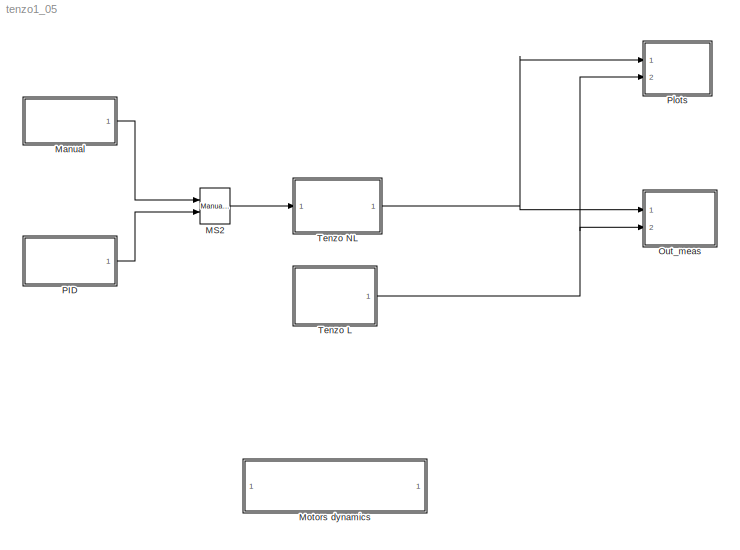
MODEL tenzo1_05
KIND model
BLOCK [Reference] MS2  REF=simulink/Signal\nRouting/Manual Switch
  Ports = [2, 1]
  SID = 670
  SourceBlock = simulink/Signal\nRouting/Manual Switch
  SourceType = Manual Switch
  action = 0
  sw = 0
  varsize = off
BLOCK [SubSystem] Manual
  FunctionWithSeparateData = off
  MaskHideContents = off
  MinAlgLoopOccurrences = off
  Opaque = off
  Ports = [0, 1]
  PropExecContextOutsideSubsystem = off
  RTWSystemCode = Auto
  RequestExecContextInheritance = off
  SID = 778
BLOCK [Concatenate] Manual/ 
  NumInputs = 4
  Ports = [4, 1]
  SID = 152
BLOCK [Concatenate] Manual/     
  NumInputs = 4
  Ports = [4, 1]
  SID = 212
BLOCK [Concatenate] Manual/                   
  NumInputs = 4
  Ports = [4, 1]
  SID = 165
BLOCK [Sum] Manual/Add1
  InputSameDT = off
  OutDataTypeStr = Inherit: Inherit via internal rule
  Ports = [2, 1]
  SID = 94
  SaturateOnIntegerOverflow = off
BLOCK [Constant] Manual/Constant
  SID = 95
  Value = X0c
BLOCK [Demux] Manual/Demux5
  DisplayOption = bar
  Ports = [1, 4]
  SID = 154
BLOCK [Demux] Manual/Demux6
  DisplayOption = bar
  Ports = [1, 4]
  SID = 164
BLOCK [Demux] Manual/Demux8
  DisplayOption = bar
  Ports = [1, 4]
  SID = 180
BLOCK [Demux] Manual/Demux9
  DisplayOption = bar
  Ports = [1, 4]
  SID = 211
BLOCK [Reference] Manual/MS  REF=simulink/Signal\nRouting/Manual Switch
  Ports = [2, 1]
  SID = 665
  SourceBlock = simulink/Signal\nRouting/Manual Switch
  SourceType = Manual Switch
  action = 0
  sw = 1
  varsize = off
BLOCK [Reference] Manual/MS1  REF=simulink/Signal\nRouting/Manual Switch
  Ports = [2, 1]
  SID = 666
  SourceBlock = simulink/Signal\nRouting/Manual Switch
  SourceType = Manual Switch
  action = 0
  sw = 0
  varsize = off
BLOCK [SubSystem] Manual/Motori1
  FunctionWithSeparateData = off
  MaskHideContents = off
  MinAlgLoopOccurrences = off
  Opaque = off
  Ports = [1, 1]
  PropExecContextOutsideSubsystem = off
  RTWSystemCode = Auto
  RequestExecContextInheritance = off
  SID = 111
BLOCK [DeadZone] Manual/Motori1/DeadZone
  LowerValue = 0
  SID = 100
  UpperValue = dz1
BLOCK [DeadZone] Manual/Motori1/DeadZone1
  LowerValue = 0
  SID = 102
  UpperValue = dz3
BLOCK [DeadZone] Manual/Motori1/DeadZone2
  LowerValue = 0
  SID = 105
  UpperValue = dz4
BLOCK [DeadZone] Manual/Motori1/DeadZone3
  LowerValue = 0
  SID = 108
  UpperValue = dz2
BLOCK [Demux] Manual/Motori1/Demux5
  DisplayOption = bar
  Ports = [1, 4]
  SID = 96
BLOCK [TransferFcn] Manual/Motori1/Motore 1
  Denominator = [tc 1]
  Numerator = [k1]
  SID = 101
BLOCK [TransferFcn] Manual/Motori1/Motore 2
  Denominator = [tc 1]
  Numerator = [k3]
  SID = 103
BLOCK [TransferFcn] Manual/Motori1/Motore 3
  Denominator = [tc 1]
  Numerator = [k4]
  SID = 106
BLOCK [TransferFcn] Manual/Motori1/Motore 4
  Denominator = [tc 1]
  Numerator = [k2]
  SID = 109
BLOCK [Mux] Manual/Motori1/Mux
  DisplayOption = bar
  Ports = [4, 1]
  SID = 98
BLOCK [Inport] Manual/Motori1/Pwm
  IconDisplay = Port number
  SID = 112
BLOCK [Saturate] Manual/Motori1/Sat
  InputPortMap = u0
  LowerLimit = 0
  Ports = [1, 1]
  SID = 99
  UpperLimit = PWM_max
BLOCK [Saturate] Manual/Motori1/Sat1
  InputPortMap = u0
  LowerLimit = 0
  Ports = [1, 1]
  SID = 104
  UpperLimit = PWM_max
BLOCK [Saturate] Manual/Motori1/Sat2
  InputPortMap = u0
  LowerLimit = 0
  Ports = [1, 1]
  SID = 107
  UpperLimit = PWM_max
BLOCK [Saturate] Manual/Motori1/Sat3
  InputPortMap = u0
  LowerLimit = 0
  Ports = [1, 1]
  SID = 110
  UpperLimit = PWM_max
BLOCK [Outport] Manual/Motori1/w
  IconDisplay = Port number
  SID = 113
BLOCK [Scope] Manual/Motori1/ws
  DataFormat = StructureWithTime
  Floating = off
  NumInputPorts = 1
  Ports = [1]
  SID = 183
  SampleTime = 0
  SaveName = ScopeData15
  ShowLegends = off
  YMax = 952.1
  YMin = 952.1
BLOCK [SubSystem] Manual/Motori2
  FunctionWithSeparateData = off
  MaskHideContents = off
  MinAlgLoopOccurrences = off
  Opaque = off
  Ports = [1, 1]
  PropExecContextOutsideSubsystem = off
  RTWSystemCode = Auto
  RequestExecContextInheritance = off
  SID = 184
BLOCK [DeadZone] Manual/Motori2/DeadZone
  LowerValue = 0
  SID = 186
  UpperValue = 300
BLOCK [DeadZone] Manual/Motori2/DeadZone1
  LowerValue = 0
  SID = 187
  UpperValue = 300
BLOCK [DeadZone] Manual/Motori2/DeadZone2
  LowerValue = 0
  SID = 188
  UpperValue = 300
BLOCK [DeadZone] Manual/Motori2/DeadZone3
  LowerValue = 0
  SID = 189
  UpperValue = 300
BLOCK [Demux] Manual/Motori2/Demux5
  DisplayOption = bar
  Ports = [1, 4]
  SID = 190
BLOCK [TransferFcn] Manual/Motori2/Motore 1
  Denominator = [tc 1]
  SID = 191
BLOCK [TransferFcn] Manual/Motori2/Motore 2
  Denominator = [tc 1]
  SID = 192
BLOCK [TransferFcn] Manual/Motori2/Motore 3
  Denominator = [tc 1]
  SID = 193
BLOCK [TransferFcn] Manual/Motori2/Motore 4
  Denominator = [tc 1]
  SID = 194
BLOCK [Mux] Manual/Motori2/Mux
  DisplayOption = bar
  Ports = [4, 1]
  SID = 195
BLOCK [Saturate] Manual/Motori2/Sat
  InputPortMap = u0
  LowerLimit = 0
  Ports = [1, 1]
  SID = 196
  UpperLimit = 10000
BLOCK [Saturate] Manual/Motori2/Sat1
  InputPortMap = u0
  LowerLimit = 0
  Ports = [1, 1]
  SID = 197
  UpperLimit = 10000
BLOCK [Saturate] Manual/Motori2/Sat2
  InputPortMap = u0
  LowerLimit = 0
  Ports = [1, 1]
  SID = 198
  UpperLimit = 10000
BLOCK [Saturate] Manual/Motori2/Sat3
  InputPortMap = u0
  LowerLimit = 0
  Ports = [1, 1]
  SID = 199
  UpperLimit = 10000
BLOCK [Outport] Manual/Motori2/w
  IconDisplay = Port number
  SID = 201
BLOCK [Inport] Manual/Motori2/wRif
  IconDisplay = Port number
  SID = 185
BLOCK [Scope] Manual/Motori2/ws
  DataFormat = StructureWithTime
  Floating = off
  NumInputPorts = 1
  Ports = [1]
  SID = 200
  SampleTime = 0
  SaveName = ScopeData15
  ShowLegends = off
  YMax = 999.705
  YMin = 904.495
BLOCK [SubSystem] Manual/PulsInput
  FunctionWithSeparateData = off
  MaskHideContents = off
  MinAlgLoopOccurrences = off
  Opaque = off
  Ports = [0, 1]
  PropExecContextOutsideSubsystem = off
  RTWSystemCode = Auto
  RequestExecContextInheritance = off
  SID = 310
BLOCK [Sum] Manual/PulsInput/Add2
  InputSameDT = off
  OutDataTypeStr = Inherit: Inherit via internal rule
  Ports = [2, 1]
  SID = 279
  SaturateOnIntegerOverflow = off
BLOCK [Sum] Manual/PulsInput/Add3
  InputSameDT = off
  OutDataTypeStr = Inherit: Inherit via internal rule
  Ports = [2, 1]
  SID = 283
  SaturateOnIntegerOverflow = off
BLOCK [Sum] Manual/PulsInput/Add4
  InputSameDT = off
  OutDataTypeStr = Inherit: Inherit via internal rule
  Ports = [2, 1]
  SID = 288
  SaturateOnIntegerOverflow = off
BLOCK [Sum] Manual/PulsInput/Add5
  InputSameDT = off
  OutDataTypeStr = Inherit: Inherit via internal rule
  Ports = [2, 1]
  SID = 294
  SaturateOnIntegerOverflow = off
BLOCK [Constant] Manual/PulsInput/Constant1
  SID = 280
  Value = X0c
BLOCK [Constant] Manual/PulsInput/Constant2
  SID = 284
  Value = X0c
BLOCK [Constant] Manual/PulsInput/Constant3
  SID = 289
  Value = X0c
BLOCK [Constant] Manual/PulsInput/Constant4
  SID = 295
  Value = X0c
BLOCK [Gain] Manual/PulsInput/Inflow1
  Gain = PulseOff
  OutDataTypeStr = Inherit: Inherit via internal rule
  ParamDataTypeStr = Inherit: Inherit via internal rule
  SID = 334
  SaturateOnIntegerOverflow = off
BLOCK [Gain] Manual/PulsInput/Inflow2
  Gain = PulseOff
  OutDataTypeStr = Inherit: Inherit via internal rule
  ParamDataTypeStr = Inherit: Inherit via internal rule
  SID = 335
  SaturateOnIntegerOverflow = off
BLOCK [Gain] Manual/PulsInput/Inflow3
  Gain = PulseOff
  OutDataTypeStr = Inherit: Inherit via internal rule
  ParamDataTypeStr = Inherit: Inherit via internal rule
  SID = 336
  SaturateOnIntegerOverflow = off
BLOCK [Gain] Manual/PulsInput/Inflow4
  Gain = PulseOff
  OutDataTypeStr = Inherit: Inherit via internal rule
  ParamDataTypeStr = Inherit: Inherit via internal rule
  SID = 337
  SaturateOnIntegerOverflow = off
BLOCK [DiscretePulseGenerator] Manual/PulsInput/Pulse\nGenerator
  Amplitude = pulseAmp
  Period = pulseP
  PhaseDelay = pulsePh
  Ports = [0, 1]
  PulseType = Time based
  PulseWidth = 50
  SID = 277
BLOCK [DiscretePulseGenerator] Manual/PulsInput/Pulse\nGenerator1
  Amplitude = pulseAmp
  Period = pulseP
  PhaseDelay = pulsePh
  Ports = [0, 1]
  PulseType = Time based
  PulseWidth = 50
  SID = 285
BLOCK [DiscretePulseGenerator] Manual/PulsInput/Pulse\nGenerator2
  Amplitude = pulseAmp
  Period = pulseP
  PhaseDelay = pulsePh
  Ports = [0, 1]
  PulseType = Time based
  PulseWidth = 50
  SID = 290
BLOCK [DiscretePulseGenerator] Manual/PulsInput/Pulse\nGenerator3
  Amplitude = pulseAmp
  Period = pulseP4
  PhaseDelay = pulsePh
  Ports = [0, 1]
  PulseType = Time based
  PulseWidth = 50
  SID = 296
BLOCK [Concatenate] Manual/PulsInput/VC3
  NumInputs = 4
  Ports = [4, 1]
  SID = 298
BLOCK [Outport] Manual/PulsInput/W
  IconDisplay = Port number
  SID = 311
BLOCK [Scope] Manual/Pwm
  DataFormat = StructureWithTime
  Floating = off
  NumInputPorts = 1
  Ports = [1]
  SID = 143
  SampleTime = 0
  SaveName = ScopeData1
  ShowLegends = off
BLOCK [SubSystem] Manual/Ref0
  FunctionWithSeparateData = off
  MaskHideContents = off
  MinAlgLoopOccurrences = off
  Opaque = off
  Ports = [0, 1]
  PropExecContextOutsideSubsystem = off
  RTWSystemCode = Auto
  RequestExecContextInheritance = off
  SID = 305
BLOCK [Mux] Manual/Ref0/Mux
  DisplayOption = bar
  Ports = [4, 1]
  SID = 276
BLOCK [Outport] Manual/Ref0/Out1
  IconDisplay = Port number
  SID = 306
BLOCK [SignalGenerator] Manual/Ref0/W1
  Amplitude = w1
  Frequency = 0.07
  Ports = [0, 1]
  SID = 272
  WaveForm = square
BLOCK [SignalGenerator] Manual/Ref0/W2
  Amplitude = w2
  Frequency = 0.07
  Ports = [0, 1]
  SID = 273
  WaveForm = square
BLOCK [SignalGenerator] Manual/Ref0/W3
  Amplitude = w3
  Frequency = 0.07
  Ports = [0, 1]
  SID = 274
  WaveForm = square
BLOCK [SignalGenerator] Manual/Ref0/W4
  Amplitude = w4
  Frequency = 0.07
  Ports = [0, 1]
  SID = 275
  WaveForm = square
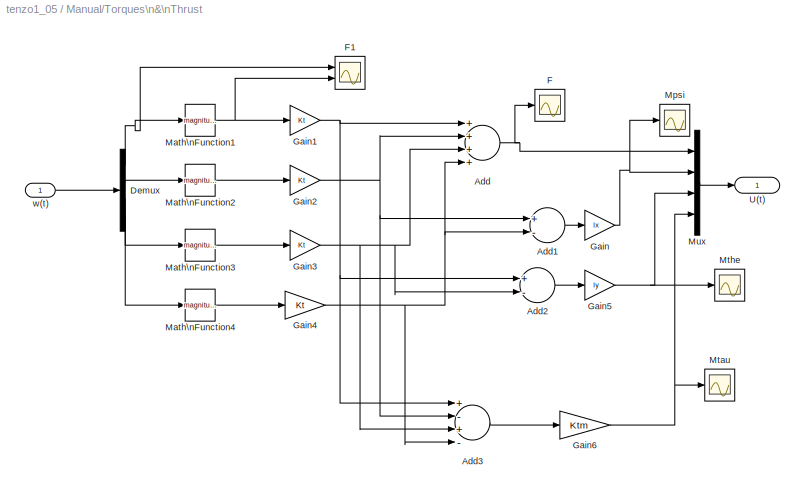
BLOCK [SubSystem] Manual/Torques\n&\nThrust
  FunctionWithSeparateData = off
  MaskHideContents = off
  MinAlgLoopOccurrences = off
  Opaque = off
  Ports = [1, 1]
  PropExecContextOutsideSubsystem = off
  RTWSystemCode = Auto
  RequestExecContextInheritance = off
  SID = 65
BLOCK [Sum] Manual/Torques\n&\nThrust/Add
  InputSameDT = off
  Inputs = ++++
  OutDataTypeStr = Inherit: Inherit via internal rule
  Ports = [4, 1]
  SID = 57
  SaturateOnIntegerOverflow = off
BLOCK [Sum] Manual/Torques\n&\nThrust/Add1
  InputSameDT = off
  Inputs = +-
  OutDataTypeStr = Inherit: Inherit via internal rule
  Ports = [2, 1]
  SID = 60
  SaturateOnIntegerOverflow = off
BLOCK [Sum] Manual/Torques\n&\nThrust/Add2
  InputSameDT = off
  Inputs = +-
  OutDataTypeStr = Inherit: Inherit via internal rule
  Ports = [2, 1]
  SID = 61
  SaturateOnIntegerOverflow = off
BLOCK [Sum] Manual/Torques\n&\nThrust/Add3
  InputSameDT = off
  Inputs = +-+-
  OutDataTypeStr = Inherit: Inherit via internal rule
  Ports = [4, 1]
  SID = 63
  SaturateOnIntegerOverflow = off
BLOCK [Demux] Manual/Torques\n&\nThrust/Demux
  DisplayOption = bar
  Ports = [1, 4]
  SID = 71
BLOCK [Scope] Manual/Torques\n&\nThrust/F
  DataFormat = StructureWithTime
  Floating = off
  NumInputPorts = 1
  Ports = [1]
  SID = 232
  SampleTime = 0
  SaveName = ScopeData17
  ShowLegends = off
  ZoomMode = yonly
BLOCK [Scope] Manual/Torques\n&\nThrust/F1
  DataFormat = StructureWithTime
  Floating = off
  NumInputPorts = 2
  Ports = [2]
  SID = 233
  SampleTime = 0
  SaveName = ScopeData19
  ShowLegends = off
  YMax = 5~5
  YMin = -5~-5
  ZoomMode = yonly
BLOCK [Gain] Manual/Torques\n&\nThrust/Gain
  Gain = lx
  OutDataTypeStr = Inherit: Inherit via internal rule
  ParamDataTypeStr = Inherit: Inherit via internal rule
  SID = 44
  SaturateOnIntegerOverflow = off
BLOCK [Gain] Manual/Torques\n&\nThrust/Gain1
  Gain = Kt
  OutDataTypeStr = Inherit: Inherit via internal rule
  ParamDataTypeStr = Inherit: Inherit via internal rule
  SID = 53
  SaturateOnIntegerOverflow = off
BLOCK [Gain] Manual/Torques\n&\nThrust/Gain2
  Gain = Kt
  OutDataTypeStr = Inherit: Inherit via internal rule
  ParamDataTypeStr = Inherit: Inherit via internal rule
  SID = 54
  SaturateOnIntegerOverflow = off
BLOCK [Gain] Manual/Torques\n&\nThrust/Gain3
  Gain = Kt
  OutDataTypeStr = Inherit: Inherit via internal rule
  ParamDataTypeStr = Inherit: Inherit via internal rule
  SID = 55
  SaturateOnIntegerOverflow = off
BLOCK [Gain] Manual/Torques\n&\nThrust/Gain4
  Gain = Kt
  OutDataTypeStr = Inherit: Inherit via internal rule
  ParamDataTypeStr = Inherit: Inherit via internal rule
  SID = 56
  SaturateOnIntegerOverflow = off
BLOCK [Gain] Manual/Torques\n&\nThrust/Gain5
  Gain = ly
  OutDataTypeStr = Inherit: Inherit via internal rule
  ParamDataTypeStr = Inherit: Inherit via internal rule
  SID = 62
  SaturateOnIntegerOverflow = off
BLOCK [Gain] Manual/Torques\n&\nThrust/Gain6
  Gain = Ktm
  OutDataTypeStr = Inherit: Inherit via internal rule
  ParamDataTypeStr = Inherit: Inherit via internal rule
  SID = 64
  SaturateOnIntegerOverflow = off
BLOCK [Math] Manual/Torques\n&\nThrust/Math\nFunction1
  Operator = magnitude^2
  Ports = [1, 1]
  SID = 49
BLOCK [Math] Manual/Torques\n&\nThrust/Math\nFunction2
  Operator = magnitude^2
  Ports = [1, 1]
  SID = 50
BLOCK [Math] Manual/Torques\n&\nThrust/Math\nFunction3
  Operator = magnitude^2
  Ports = [1, 1]
  SID = 51
BLOCK [Math] Manual/Torques\n&\nThrust/Math\nFunction4
  Operator = magnitude^2
  Ports = [1, 1]
  SID = 52
BLOCK [Scope] Manual/Torques\n&\nThrust/Mpsi
  DataFormat = StructureWithTime
  Floating = off
  NumInputPorts = 1
  Ports = [1]
  SID = 173
  SampleTime = 0
  SaveName = ScopeData14
  ShowLegends = off
  ZoomMode = yonly
BLOCK [Scope] Manual/Torques\n&\nThrust/Mtau
  DataFormat = StructureWithTime
  Floating = off
  NumInputPorts = 1
  Ports = [1]
  SID = 170
  SampleTime = 0
  SaveName = ScopeData11
  ShowLegends = off
  ZoomMode = yonly
BLOCK [Scope] Manual/Torques\n&\nThrust/Mthe
  DataFormat = StructureWithTime
  Floating = off
  NumInputPorts = 1
  Ports = [1]
  SID = 171
  SampleTime = 0
  SaveName = ScopeData13
  ShowLegends = off
BLOCK [Mux] Manual/Torques\n&\nThrust/Mux
  DisplayOption = bar
  Ports = [4, 1]
  SID = 58
BLOCK [Outport] Manual/Torques\n&\nThrust/U(t)
  IconDisplay = Port number
  SID = 68
BLOCK [Inport] Manual/Torques\n&\nThrust/w(t)
  IconDisplay = Port number
  SID = 72
BLOCK [Concatenate] Manual/Vector\nConcatenate2
  NumInputs = 4
  Ports = [4, 1]
  SID = 181
BLOCK [Scope] Manual/rad//s
  DataFormat = StructureWithTime
  Floating = off
  NumInputPorts = 1
  Ports = [1]
  SID = 92
  SampleTime = 0
  SaveName = ScopeData12
  ShowLegends = off
  YMax = 8.5
  YMin = 0
  ZoomMode = yonly
BLOCK [Scope] Manual/rad//s2
  DataFormat = StructureWithTime
  Floating = off
  NumInputPorts = 1
  Ports = [1]
  SID = 146
  SampleTime = 0
  SaveName = ScopeData3
  ShowLegends = off
  YMax = 6000
  YMin = 3000
BLOCK [Outport] Manual/u_man(t)
  IconDisplay = Port number
  SID = 779
BLOCK [Scope] Manual/w0  
  DataFormat = StructureWithTime
  Floating = off
  LimitDataPoints = off
  NumInputPorts = 1
  Ports = [1]
  SID = 213
  SampleTime = 0
  SaveName = ScopeData16
  ShowLegends = off
  YMax = 7000
  YMin = 2500
BLOCK [Scope] Manual/ws
  DataFormat = StructureWithTime
  Floating = off
  NumInputPorts = 1
  Ports = [1]
  SID = 166
  SampleTime = 0
  SaveName = ScopeData10
  ShowLegends = off
  YMax = 1950
  YMin = 950
BLOCK [SubSystem] Motors dynamics
  FunctionWithSeparateData = off
  MaskHideContents = off
  MinAlgLoopOccurrences = off
  Opaque = off
  Ports = [1, 1]
  PropExecContextOutsideSubsystem = off
  RTWSystemCode = Auto
  RequestExecContextInheritance = off
  SID = 813
BLOCK [Demux] Motors dynamics/Demux11
  DisplayOption = bar
  Ports = [1, 4]
  SID = 542
BLOCK [Inport] Motors dynamics/IdealForces
  IconDisplay = Port number
  SID = 814
BLOCK [SubSystem] Motors dynamics/Motors
  FunctionWithSeparateData = off
  MaskHideContents = off
  MinAlgLoopOccurrences = off
  Opaque = off
  Ports = [1, 1]
  PropExecContextOutsideSubsystem = off
  RTWSystemCode = Auto
  RequestExecContextInheritance = off
  SID = 543
BLOCK [DeadZone] Motors dynamics/Motors/DZ
  LowerValue = 0
  SID = 545
  UpperValue = 300
BLOCK [DeadZone] Motors dynamics/Motors/DZ1
  LowerValue = 0
  SID = 548
  UpperValue = 300
BLOCK [DeadZone] Motors dynamics/Motors/DZ2
  LowerValue = 0
  SID = 546
  UpperValue = 300
BLOCK [DeadZone] Motors dynamics/Motors/DZ3
  LowerValue = 0
  SID = 547
  UpperValue = 300
BLOCK [Demux] Motors dynamics/Motors/Demux5
  DisplayOption = bar
  Ports = [1, 4]
  SID = 549
BLOCK [TransferFcn] Motors dynamics/Motors/Motore 1
  Denominator = [tc 1]
  SID = 550
BLOCK [TransferFcn] Motors dynamics/Motors/Motore 2
  Denominator = [tc 1]
  SID = 551
BLOCK [TransferFcn] Motors dynamics/Motors/Motore 3
  Denominator = [tc 1]
  SID = 552
BLOCK [TransferFcn] Motors dynamics/Motors/Motore 4
  Denominator = [tc 1]
  SID = 553
BLOCK [Mux] Motors dynamics/Motors/Mux
  DisplayOption = bar
  Ports = [4, 1]
  SID = 554
BLOCK [Saturate] Motors dynamics/Motors/Sat
  InputPortMap = u0
  LowerLimit = 0
  Ports = [1, 1]
  SID = 555
  UpperLimit = 10000
BLOCK [Saturate] Motors dynamics/Motors/Sat1
  InputPortMap = u0
  LowerLimit = 0
  Ports = [1, 1]
  SID = 556
  UpperLimit = 10000
BLOCK [Saturate] Motors dynamics/Motors/Sat2
  InputPortMap = u0
  LowerLimit = 0
  Ports = [1, 1]
  SID = 557
  UpperLimit = 10000
BLOCK [Saturate] Motors dynamics/Motors/Sat3
  InputPortMap = u0
  LowerLimit = 0
  Ports = [1, 1]
  SID = 558
  UpperLimit = 10000
BLOCK [Outport] Motors dynamics/Motors/w
  IconDisplay = Port number
  SID = 560
BLOCK [Inport] Motors dynamics/Motors/wRif
  IconDisplay = Port number
  SID = 544
BLOCK [Scope] Motors dynamics/Motors/ws
  DataFormat = StructureWithTime
  Floating = off
  NumInputPorts = 1
  Ports = [1]
  SID = 559
  SampleTime = 0
  SaveName = ScopeData15
  ShowLegends = off
  YMax = 999.705
  YMin = 904.495
BLOCK [Mux] Motors dynamics/Mux3
  DisplayOption = bar
  Ports = [4, 1]
  SID = 561
BLOCK [Outport] Motors dynamics/RealForces
  IconDisplay = Port number
  SID = 815
BLOCK [SubSystem] Motors dynamics/T*toW
  ErrorFcn = Stateflow.Translate.translate
  FunctionWithSeparateData = off
  MaskHideContents = off
  MinAlgLoopOccurrences = off
  Opaque = off
  PermitHierarchicalResolution = ExplicitOnly
  Ports = [4, 4]
  PropExecContextOutsideSubsystem = off
  RTWSystemCode = Auto
  RequestExecContextInheritance = off
  SFBlockType = MATLAB Function
  SID = 541
  TreatAsAtomicUnit = on
BLOCK [Demux] Motors dynamics/T*toW/ Demux 
  Outputs = 1
  Ports = [1, 1]
  SID = 541::30
BLOCK [S-Function] Motors dynamics/T*toW/ SFunction 
  EnableBusSupport = on
  FunctionName = sf_sfun
  PortCounts = [4 5]
  Ports = [4, 5]
  SID = 541::29
  Tag = Stateflow S-Function tenzo1_05 1
BLOCK [Terminator] Motors dynamics/T*toW/ Terminator 
  SID = 541::31
BLOCK [Inport] Motors dynamics/T*toW/T
  IconDisplay = Port number
  SID = 541::1
BLOCK [Inport] Motors dynamics/T*toW/taux
  IconDisplay = Port number
  Port = 2
  SID = 541::23
BLOCK [Inport] Motors dynamics/T*toW/tauy
  IconDisplay = Port number
  Port = 3
  SID = 541::24
BLOCK [Inport] Motors dynamics/T*toW/tauz
  IconDisplay = Port number
  Port = 4
  SID = 541::25
BLOCK [Outport] Motors dynamics/T*toW/w1
  IconDisplay = Port number
  SID = 541::5
BLOCK [Outport] Motors dynamics/T*toW/w2
  IconDisplay = Port number
  Port = 2
  SID = 541::26
BLOCK [Outport] Motors dynamics/T*toW/w3
  IconDisplay = Port number
  Port = 3
  SID = 541::27
BLOCK [Outport] Motors dynamics/T*toW/w4
  IconDisplay = Port number
  Port = 4
  SID = 541::28
BLOCK [SubSystem] Motors dynamics/WtoTreal
  FunctionWithSeparateData = off
  MaskHideContents = off
  MinAlgLoopOccurrences = off
  Opaque = off
  Ports = [1, 1]
  PropExecContextOutsideSubsystem = off
  RTWSystemCode = Auto
  RequestExecContextInheritance = off
  SID = 562
BLOCK [Sum] Motors dynamics/WtoTreal/Add
  InputSameDT = off
  Inputs = ++++
  OutDataTypeStr = Inherit: Inherit via internal rule
  Ports = [4, 1]
  SID = 564
  SaturateOnIntegerOverflow = off
BLOCK [Sum] Motors dynamics/WtoTreal/Add1
  InputSameDT = off
  Inputs = +-
  OutDataTypeStr = Inherit: Inherit via internal rule
  Ports = [2, 1]
  SID = 565
  SaturateOnIntegerOverflow = off
BLOCK [Sum] Motors dynamics/WtoTreal/Add2
  InputSameDT = off
  Inputs = +-
  OutDataTypeStr = Inherit: Inherit via internal rule
  Ports = [2, 1]
  SID = 566
  SaturateOnIntegerOverflow = off
BLOCK [Sum] Motors dynamics/WtoTreal/Add3
  InputSameDT = off
  Inputs = +-+-
  OutDataTypeStr = Inherit: Inherit via internal rule
  Ports = [4, 1]
  SID = 567
  SaturateOnIntegerOverflow = off
BLOCK [Demux] Motors dynamics/WtoTreal/Demux
  DisplayOption = bar
  Ports = [1, 4]
  SID = 568
BLOCK [Scope] Motors dynamics/WtoTreal/F
  DataFormat = StructureWithTime
  Floating = off
  NumInputPorts = 1
  Ports = [1]
  SID = 569
  SampleTime = 0
  SaveName = ScopeData17
  ShowLegends = off
  ZoomMode = yonly
BLOCK [Scope] Motors dynamics/WtoTreal/F1
  DataFormat = StructureWithTime
  Floating = off
  NumInputPorts = 2
  Ports = [2]
  SID = 570
  SampleTime = 0
  SaveName = ScopeData19
  ShowLegends = off
  YMax = 5~5
  YMin = -5~-5
  ZoomMode = yonly
BLOCK [Gain] Motors dynamics/WtoTreal/Gain
  Gain = lx
  OutDataTypeStr = Inherit: Inherit via internal rule
  ParamDataTypeStr = Inherit: Inherit via internal rule
  SID = 571
  SaturateOnIntegerOverflow = off
BLOCK [Gain] Motors dynamics/WtoTreal/Gain1
  Gain = Kt
  OutDataTypeStr = Inherit: Inherit via internal rule
  ParamDataTypeStr = Inherit: Inherit via internal rule
  SID = 572
  SaturateOnIntegerOverflow = off
BLOCK [Gain] Motors dynamics/WtoTreal/Gain2
  Gain = Kt
  OutDataTypeStr = Inherit: Inherit via internal rule
  ParamDataTypeStr = Inherit: Inherit via internal rule
  SID = 573
  SaturateOnIntegerOverflow = off
BLOCK [Gain] Motors dynamics/WtoTreal/Gain3
  Gain = Kt
  OutDataTypeStr = Inherit: Inherit via internal rule
  ParamDataTypeStr = Inherit: Inherit via internal rule
  SID = 574
  SaturateOnIntegerOverflow = off
BLOCK [Gain] Motors dynamics/WtoTreal/Gain4
  Gain = Kt
  OutDataTypeStr = Inherit: Inherit via internal rule
  ParamDataTypeStr = Inherit: Inherit via internal rule
  SID = 575
  SaturateOnIntegerOverflow = off
BLOCK [Gain] Motors dynamics/WtoTreal/Gain5
  Gain = ly
  OutDataTypeStr = Inherit: Inherit via internal rule
  ParamDataTypeStr = Inherit: Inherit via internal rule
  SID = 576
  SaturateOnIntegerOverflow = off
BLOCK [Gain] Motors dynamics/WtoTreal/Gain6
  Gain = Ktm
  OutDataTypeStr = Inherit: Inherit via internal rule
  ParamDataTypeStr = Inherit: Inherit via internal rule
  SID = 577
  SaturateOnIntegerOverflow = off
BLOCK [Math] Motors dynamics/WtoTreal/Math\nFunction1
  Operator = magnitude^2
  Ports = [1, 1]
  SID = 578
BLOCK [Math] Motors dynamics/WtoTreal/Math\nFunction2
  Operator = magnitude^2
  Ports = [1, 1]
  SID = 579
BLOCK [Math] Motors dynamics/WtoTreal/Math\nFunction3
  Operator = magnitude^2
  Ports = [1, 1]
  SID = 580
BLOCK [Math] Motors dynamics/WtoTreal/Math\nFunction4
  Operator = magnitude^2
  Ports = [1, 1]
  SID = 581
BLOCK [Scope] Motors dynamics/WtoTreal/Mpsi
  DataFormat = StructureWithTime
  Floating = off
  NumInputPorts = 1
  Ports = [1]
  SID = 582
  SampleTime = 0
  SaveName = ScopeData14
  ShowLegends = off
  ZoomMode = yonly
BLOCK [Scope] Motors dynamics/WtoTreal/Mtau
  DataFormat = StructureWithTime
  Floating = off
  NumInputPorts = 1
  Ports = [1]
  SID = 583
  SampleTime = 0
  SaveName = ScopeData11
  ShowLegends = off
  ZoomMode = yonly
BLOCK [Scope] Motors dynamics/WtoTreal/Mthe
  DataFormat = StructureWithTime
  Floating = off
  NumInputPorts = 1
  Ports = [1]
  SID = 584
  SampleTime = 0
  SaveName = ScopeData13
  ShowLegends = off
BLOCK [Mux] Motors dynamics/WtoTreal/Mux
  DisplayOption = bar
  Ports = [4, 1]
  SID = 585
BLOCK [Outport] Motors dynamics/WtoTreal/U(t)
  IconDisplay = Port number
  SID = 586
BLOCK [Inport] Motors dynamics/WtoTreal/w(t)
  IconDisplay = Port number
  SID = 563
BLOCK [SubSystem] Out_meas
  FunctionWithSeparateData = off
  MaskHideContents = off
  MinAlgLoopOccurrences = off
  Opaque = off
  Ports = [2]
  PropExecContextOutsideSubsystem = off
  RTWSystemCode = Auto
  RequestExecContextInheritance = off
  SID = 806
BLOCK [SubSystem] Out_meas/C
  ErrorFcn = Stateflow.Translate.translate
  FunctionWithSeparateData = off
  MaskHideContents = off
  MinAlgLoopOccurrences = off
  Opaque = off
  PermitHierarchicalResolution = ExplicitOnly
  Ports = [1, 1]
  PropExecContextOutsideSubsystem = off
  RTWSystemCode = Auto
  RequestExecContextInheritance = off
  SFBlockType = MATLAB Function
  SID = 224
  TreatAsAtomicUnit = on
BLOCK [Demux] Out_meas/C/ Demux 
  Outputs = 1
  Ports = [1, 1]
  SID = 224::24
BLOCK [S-Function] Out_meas/C/ SFunction 
  EnableBusSupport = on
  FunctionName = sf_sfun
  PortCounts = [1 2]
  Ports = [1, 2]
  SID = 224::23
  Tag = Stateflow S-Function tenzo1_05 2
BLOCK [Terminator] Out_meas/C/ Terminator 
  SID = 224::25
BLOCK [Inport] Out_meas/C/X
  IconDisplay = Port number
  SID = 224::1
BLOCK [Outport] Out_meas/C/ymis
  IconDisplay = Port number
  SID = 224::5
BLOCK [Reference] Out_meas/MS3  REF=simulink/Signal\nRouting/Manual Switch
  Ports = [2, 1]
  SID = 667
  SourceBlock = simulink/Signal\nRouting/Manual Switch
  SourceType = Manual Switch
  action = 0
  sw = 1
  varsize = off
BLOCK [ToWorkspace] Out_meas/To Workspace
  MaxDataPoints = inf
  Ports = [1]
  SID = 231
  SampleTime = -1
  SaveFormat = Timeseries
  VariableName = X
BLOCK [Scope] Out_meas/Ym(t) : output
  DataFormat = StructureWithTime
  Floating = off
  NumInputPorts = 1
  Ports = [1]
  SID = 226
  SampleTime = 0
  SaveName = ScopeData18
  ShowLegends = off
  TimeRange = 25
  YMax = 200
  YMin = 0
BLOCK [ToWorkspace] Out_meas/Ymis
  MaxDataPoints = inf
  Ports = [1]
  SID = 234
  SampleTime = -1
  SaveFormat = Timeseries
  VariableName = Ymis
BLOCK [Inport] Out_meas/yL
  IconDisplay = Port number
  Port = 2
  SID = 808
BLOCK [Inport] Out_meas/yNL
  IconDisplay = Port number
  SID = 807
BLOCK [SubSystem] PID 
  FunctionWithSeparateData = off
  MaskHideContents = off
  MinAlgLoopOccurrences = off
  Opaque = off
  Ports = [0, 1]
  PropExecContextOutsideSubsystem = off
  RTWSystemCode = Auto
  RequestExecContextInheritance = off
  SID = 671
BLOCK [Mux] PID /Mux1
  DisplayOption = bar
  Ports = [4, 1]
  SID = 530
BLOCK [SubSystem] PID /Pids
  FunctionWithSeparateData = off
  MaskHideContents = off
  MinAlgLoopOccurrences = off
  Opaque = off
  Ports = [0, 1]
  PropExecContextOutsideSubsystem = off
  RTWSystemCode = Auto
  RequestExecContextInheritance = off
  SID = 484
BLOCK [Constant] PID /Pids/Constant1
  SID = 491
  Value = refs(7)
BLOCK [Constant] PID /Pids/Constant2
  SID = 483
  Value = refs(3)
BLOCK [Constant] PID /Pids/Constant3
  SID = 492
  Value = refs(8)
BLOCK [Constant] PID /Pids/Constant4
  SID = 493
  Value = refs(9)
BLOCK [From] PID /Pids/From1
  GotoTag = ze
  SID = 506
  TagVisibility = global
BLOCK [From] PID /Pids/From2
  GotoTag = phi
  SID = 507
  TagVisibility = global
BLOCK [From] PID /Pids/From3
  GotoTag = theta
  SID = 508
  TagVisibility = global
BLOCK [From] PID /Pids/From4
  GotoTag = psi
  SID = 509
  TagVisibility = global
BLOCK [Mux] PID /Pids/Mux1
  DisplayOption = bar
  Ports = [4, 1]
  SID = 481
BLOCK [Reference] PID /Pids/PID Controller  REF=simulink/Continuous/PID Controller
  AntiWindupMode = none
  Controller = PID
  D = -3.74671724354833
  DOutDataTypeStr = Inherit: Inherit via internal rule
  DOutMax = []
  DOutMin = []
  DParamDataTypeStr = Inherit: Inherit via internal rule
  DParamMax = []
  DParamMin = []
  ExternalReset = none
  FilterContinuousStateAttributes = ''
  FilterMethod = Forward Euler
  FilterOutDataTypeStr = Inherit: Inherit via internal rule
  FilterOutMax = []
  FilterOutMin = []
  FilterRTWStateStorageClass = Auto
  FilterStateMustResolveToSignalObject = off
  Form = Parallel
  I = -0.10856097435728
  IOutDataTypeStr = Inherit: Inherit via internal rule
  IOutMax = []
  IOutMin = []
  IParamDataTypeStr = Inherit: Inherit via internal rule
  IParamMax = []
  IParamMin = []
  IgnoreLimit = off
  InitialConditionForFilter = 0
  InitialConditionForIntegrator = 0
  InitialConditionSource = internal
  IntegratorContinuousStateAttributes = ''
  IntegratorMethod = Forward Euler
  IntegratorOutDataTypeStr = Inherit: Inherit via internal rule
  IntegratorOutMax = []
  IntegratorOutMin = []
  IntegratorRTWStateStorageClass = Auto
  IntegratorStateMustResolveToSignalObject = off
  Kb = 1
  KbOutDataTypeStr = Inherit: Inherit via internal rule
  KbOutMax = []
  KbOutMin = []
  KbParamDataTypeStr = Inherit: Inherit via internal rule
  KbParamMax = []
  KbParamMin = []
  Kt = 1
  KtOutDataTypeStr = Inherit: Inherit via internal rule
  KtOutMax = []
  KtOutMin = []
  KtParamDataTypeStr = Inherit: Inherit via internal rule
  KtParamMax = []
  KtParamMin = []
  LimitOutput = off
  LinearizeAsGain = off
  LockScale = off
  LowerSaturationLimit = -inf
  N = 25.4035614147579
  NOutDataTypeStr = Inherit: Inherit via internal rule
  NOutMax = []
  NOutMin = []
  NParamDataTypeStr = Inherit: Inherit via internal rule
  NParamMax = []
  NParamMin = []
  P = -2.81657290050028
  POutDataTypeStr = Inherit: Inherit via internal rule
  POutMax = []
  POutMin = []
  PParamDataTypeStr = Inherit: Inherit via internal rule
  PParamMax = []
  PParamMin = []
  Ports = [1, 1]
  RndMeth = Floor
  SID = 474
  SampleTime = 1
  SaturateOnIntegerOverflow = off
  SaturationOutDataTypeStr = Inherit: Same as input
  SaturationOutMax = []
  SaturationOutMin = []
  SourceBlock = simulink/Continuous/PID Controller
  SourceType = PID 1dof
  SumAccumDataTypeStr = Inherit: Inherit via internal rule
  SumDAccumDataTypeStr = Inherit: Inherit via internal rule
  SumDOutDataTypeStr = Inherit: Inherit via internal rule
  SumDOutMax = []
  SumDOutMin = []
  SumI1AccumDataTypeStr = Inherit: Inherit via internal rule
  SumI1OutDataTypeStr = Inherit: Inherit via internal rule
  SumI1OutMax = []
  SumI1OutMin = []
  SumI2AccumDataTypeStr = Inherit: Inherit via internal rule
  SumI2OutDataTypeStr = Inherit: Inherit via internal rule
  SumI2OutMax = []
  SumI2OutMin = []
  SumI3AccumDataTypeStr = Inherit: Inherit via internal rule
  SumI3OutDataTypeStr = Inherit: Inherit via internal rule
  SumI3OutMax = []
  SumI3OutMin = []
  SumOutDataTypeStr = Inherit: Inherit via internal rule
  SumOutMax = []
  SumOutMin = []
  TimeDomain = Continuous-time
  TrackingMode = off
  UpperSaturationLimit = inf
  ZeroCross = on
BLOCK [Reference] PID /Pids/PID Controller1  REF=simulink/Continuous/PID Controller
  AntiWindupMode = none
  Controller = PID
  D = 0.00233719169675889
  DOutDataTypeStr = Inherit: Inherit via internal rule
  DOutMax = []
  DOutMin = []
  DParamDataTypeStr = Inherit: Inherit via internal rule
  DParamMax = []
  DParamMin = []
  ExternalReset = none
  FilterContinuousStateAttributes = ''
  FilterMethod = Forward Euler
  FilterOutDataTypeStr = Inherit: Inherit via internal rule
  FilterOutMax = []
  FilterOutMin = []
  FilterRTWStateStorageClass = Auto
  FilterStateMustResolveToSignalObject = off
  Form = Parallel
  I = 0.000205170764798032
  IOutDataTypeStr = Inherit: Inherit via internal rule
  IOutMax = []
  IOutMin = []
  IParamDataTypeStr = Inherit: Inherit via internal rule
  IParamMax = []
  IParamMin = []
  IgnoreLimit = off
  InitialConditionForFilter = 0
  InitialConditionForIntegrator = 0
  InitialConditionSource = internal
  IntegratorContinuousStateAttributes = ''
  IntegratorMethod = Forward Euler
  IntegratorOutDataTypeStr = Inherit: Inherit via internal rule
  IntegratorOutMax = []
  IntegratorOutMin = []
  IntegratorRTWStateStorageClass = Auto
  IntegratorStateMustResolveToSignalObject = off
  Kb = 1
  KbOutDataTypeStr = Inherit: Inherit via internal rule
  KbOutMax = []
  KbOutMin = []
  KbParamDataTypeStr = Inherit: Inherit via internal rule
  KbParamMax = []
  KbParamMin = []
  Kt = 1
  KtOutDataTypeStr = Inherit: Inherit via internal rule
  KtOutMax = []
  KtOutMin = []
  KtParamDataTypeStr = Inherit: Inherit via internal rule
  KtParamMax = []
  KtParamMin = []
  LimitOutput = off
  LinearizeAsGain = off
  LockScale = off
  LowerSaturationLimit = -inf
  N = 31.074421221511
  NOutDataTypeStr = Inherit: Inherit via internal rule
  NOutMax = []
  NOutMin = []
  NParamDataTypeStr = Inherit: Inherit via internal rule
  NParamMax = []
  NParamMin = []
  P = 0.00227776084894012
  POutDataTypeStr = Inherit: Inherit via internal rule
  POutMax = []
  POutMin = []
  PParamDataTypeStr = Inherit: Inherit via internal rule
  PParamMax = []
  PParamMin = []
  Ports = [1, 1]
  RndMeth = Floor
  SID = 477
  SampleTime = 1
  SaturateOnIntegerOverflow = off
  SaturationOutDataTypeStr = Inherit: Same as input
  SaturationOutMax = []
  SaturationOutMin = []
  SourceBlock = simulink/Continuous/PID Controller
  SourceType = PID 1dof
  SumAccumDataTypeStr = Inherit: Inherit via internal rule
  SumDAccumDataTypeStr = Inherit: Inherit via internal rule
  SumDOutDataTypeStr = Inherit: Inherit via internal rule
  SumDOutMax = []
  SumDOutMin = []
  SumI1AccumDataTypeStr = Inherit: Inherit via internal rule
  SumI1OutDataTypeStr = Inherit: Inherit via internal rule
  SumI1OutMax = []
  SumI1OutMin = []
  SumI2AccumDataTypeStr = Inherit: Inherit via internal rule
  SumI2OutDataTypeStr = Inherit: Inherit via internal rule
  SumI2OutMax = []
  SumI2OutMin = []
  SumI3AccumDataTypeStr = Inherit: Inherit via internal rule
  SumI3OutDataTypeStr = Inherit: Inherit via internal rule
  SumI3OutMax = []
  SumI3OutMin = []
  SumOutDataTypeStr = Inherit: Inherit via internal rule
  SumOutMax = []
  SumOutMin = []
  TimeDomain = Continuous-time
  TrackingMode = off
  UpperSaturationLimit = inf
  ZeroCross = on
BLOCK [Reference] PID /Pids/PID Controller2  REF=simulink/Continuous/PID Controller
  AntiWindupMode = none
  Controller = PID
  D = 0.00199688923629926
  DOutDataTypeStr = Inherit: Inherit via internal rule
  DOutMax = []
  DOutMin = []
  DParamDataTypeStr = Inherit: Inherit via internal rule
  DParamMax = []
  DParamMin = []
  ExternalReset = none
  FilterContinuousStateAttributes = ''
  FilterMethod = Forward Euler
  FilterOutDataTypeStr = Inherit: Inherit via internal rule
  FilterOutMax = []
  FilterOutMin = []
  FilterRTWStateStorageClass = Auto
  FilterStateMustResolveToSignalObject = off
  Form = Parallel
  I = 3.39916753327837e-05
  IOutDataTypeStr = Inherit: Inherit via internal rule
  IOutMax = []
  IOutMin = []
  IParamDataTypeStr = Inherit: Inherit via internal rule
  IParamMax = []
  IParamMin = []
  IgnoreLimit = off
  InitialConditionForFilter = 0
  InitialConditionForIntegrator = 0
  InitialConditionSource = internal
  IntegratorContinuousStateAttributes = ''
  IntegratorMethod = Forward Euler
  IntegratorOutDataTypeStr = Inherit: Inherit via internal rule
  IntegratorOutMax = []
  IntegratorOutMin = []
  IntegratorRTWStateStorageClass = Auto
  IntegratorStateMustResolveToSignalObject = off
  Kb = 1
  KbOutDataTypeStr = Inherit: Inherit via internal rule
  KbOutMax = []
  KbOutMin = []
  KbParamDataTypeStr = Inherit: Inherit via internal rule
  KbParamMax = []
  KbParamMin = []
  Kt = 1
  KtOutDataTypeStr = Inherit: Inherit via internal rule
  KtOutMax = []
  KtOutMin = []
  KtParamDataTypeStr = Inherit: Inherit via internal rule
  KtParamMax = []
  KtParamMin = []
  LimitOutput = off
  LinearizeAsGain = off
  LockScale = off
  LowerSaturationLimit = -inf
  N = 54.5397025421619
  NOutDataTypeStr = Inherit: Inherit via internal rule
  NOutMax = []
  NOutMin = []
  NParamDataTypeStr = Inherit: Inherit via internal rule
  NParamMax = []
  NParamMin = []
  P = 0.000563479429623525
  POutDataTypeStr = Inherit: Inherit via internal rule
  POutMax = []
  POutMin = []
  PParamDataTypeStr = Inherit: Inherit via internal rule
  PParamMax = []
  PParamMin = []
  Ports = [1, 1]
  RndMeth = Floor
  SID = 478
  SampleTime = 1
  SaturateOnIntegerOverflow = off
  SaturationOutDataTypeStr = Inherit: Same as input
  SaturationOutMax = []
  SaturationOutMin = []
  SourceBlock = simulink/Continuous/PID Controller
  SourceType = PID 1dof
  SumAccumDataTypeStr = Inherit: Inherit via internal rule
  SumDAccumDataTypeStr = Inherit: Inherit via internal rule
  SumDOutDataTypeStr = Inherit: Inherit via internal rule
  SumDOutMax = []
  SumDOutMin = []
  SumI1AccumDataTypeStr = Inherit: Inherit via internal rule
  SumI1OutDataTypeStr = Inherit: Inherit via internal rule
  SumI1OutMax = []
  SumI1OutMin = []
  SumI2AccumDataTypeStr = Inherit: Inherit via internal rule
  SumI2OutDataTypeStr = Inherit: Inherit via internal rule
  SumI2OutMax = []
  SumI2OutMin = []
  SumI3AccumDataTypeStr = Inherit: Inherit via internal rule
  SumI3OutDataTypeStr = Inherit: Inherit via internal rule
  SumI3OutMax = []
  SumI3OutMin = []
  SumOutDataTypeStr = Inherit: Inherit via internal rule
  SumOutMax = []
  SumOutMin = []
  TimeDomain = Continuous-time
  TrackingMode = off
  UpperSaturationLimit = inf
  ZeroCross = on
BLOCK [Reference] PID /Pids/PID Controller3  REF=simulink/Continuous/PID Controller
  AntiWindupMode = none
  Controller = PID
  D = 0.000795936244237723
  DOutDataTypeStr = Inherit: Inherit via internal rule
  DOutMax = []
  DOutMin = []
  DParamDataTypeStr = Inherit: Inherit via internal rule
  DParamMax = []
  DParamMin = []
  ExternalReset = none
  FilterContinuousStateAttributes = ''
  FilterMethod = Forward Euler
  FilterOutDataTypeStr = Inherit: Inherit via internal rule
  FilterOutMax = []
  FilterOutMin = []
  FilterRTWStateStorageClass = Auto
  FilterStateMustResolveToSignalObject = off
  Form = Parallel
  I = 1.96774564028284e-06
  IOutDataTypeStr = Inherit: Inherit via internal rule
  IOutMax = []
  IOutMin = []
  IParamDataTypeStr = Inherit: Inherit via internal rule
  IParamMax = []
  IParamMin = []
  IgnoreLimit = off
  InitialConditionForFilter = 0
  InitialConditionForIntegrator = 0
  InitialConditionSource = internal
  IntegratorContinuousStateAttributes = ''
  IntegratorMethod = Forward Euler
  IntegratorOutDataTypeStr = Inherit: Inherit via internal rule
  IntegratorOutMax = []
  IntegratorOutMin = []
  IntegratorRTWStateStorageClass = Auto
  IntegratorStateMustResolveToSignalObject = off
  Kb = 1
  KbOutDataTypeStr = Inherit: Inherit via internal rule
  KbOutMax = []
  KbOutMin = []
  KbParamDataTypeStr = Inherit: Inherit via internal rule
  KbParamMax = []
  KbParamMin = []
  Kt = 1
  KtOutDataTypeStr = Inherit: Inherit via internal rule
  KtOutMax = []
  KtOutMin = []
  KtParamDataTypeStr = Inherit: Inherit via internal rule
  KtParamMax = []
  KtParamMin = []
  LimitOutput = off
  LinearizeAsGain = off
  LockScale = off
  LowerSaturationLimit = -inf
  N = 4.0451280111618
  NOutDataTypeStr = Inherit: Inherit via internal rule
  NOutMax = []
  NOutMin = []
  NParamDataTypeStr = Inherit: Inherit via internal rule
  NParamMax = []
  NParamMin = []
  P = 0.000131344162662358
  POutDataTypeStr = Inherit: Inherit via internal rule
  POutMax = []
  POutMin = []
  PParamDataTypeStr = Inherit: Inherit via internal rule
  PParamMax = []
  PParamMin = []
  Ports = [1, 1]
  RndMeth = Floor
  SID = 479
  SampleTime = 1
  SaturateOnIntegerOverflow = off
  SaturationOutDataTypeStr = Inherit: Same as input
  SaturationOutMax = []
  SaturationOutMin = []
  SourceBlock = simulink/Continuous/PID Controller
  SourceType = PID 1dof
  SumAccumDataTypeStr = Inherit: Inherit via internal rule
  SumDAccumDataTypeStr = Inherit: Inherit via internal rule
  SumDOutDataTypeStr = Inherit: Inherit via internal rule
  SumDOutMax = []
  SumDOutMin = []
  SumI1AccumDataTypeStr = Inherit: Inherit via internal rule
  SumI1OutDataTypeStr = Inherit: Inherit via internal rule
  SumI1OutMax = []
  SumI1OutMin = []
  SumI2AccumDataTypeStr = Inherit: Inherit via internal rule
  SumI2OutDataTypeStr = Inherit: Inherit via internal rule
  SumI2OutMax = []
  SumI2OutMin = []
  SumI3AccumDataTypeStr = Inherit: Inherit via internal rule
  SumI3OutDataTypeStr = Inherit: Inherit via internal rule
  SumI3OutMax = []
  SumI3OutMin = []
  SumOutDataTypeStr = Inherit: Inherit via internal rule
  SumOutMax = []
  SumOutMin = []
  TimeDomain = Continuous-time
  TrackingMode = off
  UpperSaturationLimit = inf
  ZeroCross = on
BLOCK [Sum] PID /Pids/Sum
  IconShape = round
  InputSameDT = off
  Inputs = +-|
  OutDataTypeStr = Inherit: Inherit via internal rule
  Ports = [2, 1]
  SID = 502
  SaturateOnIntegerOverflow = off
BLOCK [Sum] PID /Pids/Sum1
  IconShape = round
  InputSameDT = off
  Inputs = +-|
  OutDataTypeStr = Inherit: Inherit via internal rule
  Ports = [2, 1]
  SID = 510
  SaturateOnIntegerOverflow = off
BLOCK [Sum] PID /Pids/Sum2
  IconShape = round
  InputSameDT = off
  Inputs = +-|
  OutDataTypeStr = Inherit: Inherit via internal rule
  Ports = [2, 1]
  SID = 511
  SaturateOnIntegerOverflow = off
BLOCK [Sum] PID /Pids/Sum3
  IconShape = round
  InputSameDT = off
  Inputs = +-|
  OutDataTypeStr = Inherit: Inherit via internal rule
  Ports = [2, 1]
  SID = 512
  SaturateOnIntegerOverflow = off
BLOCK [Outport] PID /Pids/u*(t)
  IconDisplay = Port number
  SID = 488
BLOCK [Scope] PID /Pids/w0  1
  DataFormat = StructureWithTime
  Floating = off
  LimitDataPoints = off
  NumInputPorts = 1
  Ports = [1]
  SID = 513
  SampleTime = 0
  SaveName = ScopeData28
  ShowLegends = off
  YMax = -0.7
  YMin = -2.5
BLOCK [Scope] PID /Pids/w0  2
  DataFormat = StructureWithTime
  Floating = off
  LimitDataPoints = off
  NumInputPorts = 1
  Ports = [1]
  SID = 515
  SampleTime = 0
  SaveName = ScopeData32
  ShowLegends = off
  YMax = 4700
  YMin = 2700
BLOCK [Scope] PID /Pids/w0  3
  DataFormat = StructureWithTime
  Floating = off
  LimitDataPoints = off
  NumInputPorts = 1
  Ports = [1]
  SID = 517
  SampleTime = 0
  SaveName = ScopeData33
  ShowLegends = off
  YMax = 4700
  YMin = 2700
BLOCK [Scope] PID /Pids/w0  4
  DataFormat = StructureWithTime
  Floating = off
  LimitDataPoints = off
  NumInputPorts = 1
  Ports = [1]
  SID = 519
  SampleTime = 0
  SaveName = ScopeData34
  ShowLegends = off
  YMax = 4700
  YMin = 2700
BLOCK [SubSystem] PID /Signal Builder
  ClipboardFcn = sigbuilder_block('clipboard');
  CloseFcn = sigbuilder_block('close');
  ContinueFcn = sigbuilder_block('continue');
  CopyFcn = sigbuilder_block('copy');
  DeleteFcn = sigbuilder_block('delete');
  FunctionWithSeparateData = off
  LoadFcn = sigbuilder_block('load');
  MaskCapabilities = slmaskedcaps(gcbh)
  MaskDescription = Simulink:masks:SigbuilderBlock_MD
  MaskDisplay = plot(0, 0, 100, 100,[2, 2, 32, 32, 2], [68, 8, 8, 68, 68],[32, 2], [38, 38], [32, 19, 2],[53, 60, 44], [32, 17, 17, 2],[16, 16, 31, 31]);txt = getActiveGroup(gcbh);text(2, 100, txt,'verticalAlignment', 'top');
  MaskHideContents = on
  MaskIconFrame = on
  MaskIconOpaque = off
  MaskIconRotate = port
  MaskIconUnits = autoscale
  MaskInitialization = if ~strcmp(get_param(bdroot(gcbh),'SimulationStatus'),'stopped') tuvar = sigbuilder_block('maskInit'); end
  MaskPortRotate = default
  MaskSelfModifiable = on
  MaskType = Sigbuilder block
  MinAlgLoopOccurrences = off
  ModelCloseFcn = sigbuilder_block('modelClose');
  NameChangeFcn = sigbuilder_block('namechange');
  Opaque = off
  OpenFcn = sigbuilder_block('open',[164 68 550.4 400 ]);
  PauseFcn = sigbuilder_block('pause');
  Ports = [0, 4]
  PreSaveFcn = sigbuilder_block('preSave');
  PropExecContextOutsideSubsystem = off
  RTWSystemCode = Auto
  RequestExecContextInheritance = off
  SID = 529
  StartFcn = sigbuilder_block('start');
  StopFcn = sigbuilder_block('stop');
  Tag = STV Subsys
BLOCK [Demux] PID /Signal Builder/Demux
  Ports = [1, 4]
  SID = 529:1
  Tag = STV Demux
BLOCK [FromWorkspace] PID /Signal Builder/FromWs
  SID = 529:2
  SampleTime = 0
  SigBuilderData = DataTag0
  Tag = STV FromWs
  VariableName = tuvar
  VnvData = DataTag1
  ZeroCross = on
BLOCK [Outport] PID /Signal Builder/TauPhi
  IconDisplay = Port number
  Port = 2
  SID = 529:4
  Tag = STV Outport
BLOCK [Outport] PID /Signal Builder/TauPsi
  IconDisplay = Port number
  Port = 4
  SID = 529:6
  Tag = STV Outport
BLOCK [Outport] PID /Signal Builder/TauTheta
  IconDisplay = Port number
  Port = 3
  SID = 529:5
  Tag = STV Outport
BLOCK [Outport] PID /Signal Builder/Thrust
  IconDisplay = Port number
  SID = 529:10
  Tag = STV Outport
BLOCK [Sum] PID /Sum2
  IconShape = round
  InputSameDT = off
  Inputs = |++
  OutDataTypeStr = Inherit: Inherit via internal rule
  Ports = [2, 1]
  SID = 480
  SaturateOnIntegerOverflow = off
BLOCK [Outport] PID /U(t)
  IconDisplay = Port number
  SID = 672
BLOCK [Scope] PID /w0  2
  DataFormat = StructureWithTime
  Floating = off
  NumInputPorts = 1
  Ports = [1]
  SID = 590
  SampleTime = 0
  SaveName = ScopeData35
  ShowLegends = off
  YMax = 2.75e+08
  YMin = -2.75e+08
BLOCK [SubSystem] Plots
  FunctionWithSeparateData = off
  MaskHideContents = off
  MinAlgLoopOccurrences = off
  Opaque = off
  Ports = [2]
  PropExecContextOutsideSubsystem = off
  RTWSystemCode = Auto
  RequestExecContextInheritance = off
  SID = 252
BLOCK [SubSystem] Plots/Linear
  FunctionWithSeparateData = off
  MaskHideContents = off
  MinAlgLoopOccurrences = off
  Opaque = off
  Ports = [1, 2]
  PropExecContextOutsideSubsystem = off
  RTWSystemCode = Auto
  RequestExecContextInheritance = off
  SID = 781
BLOCK [Demux] Plots/Linear/Demux10
  DisplayOption = bar
  Outputs = 3
  Ports = [1, 3]
  SID = 321
BLOCK [Demux] Plots/Linear/Demux11
  DisplayOption = bar
  Outputs = 3
  Ports = [1, 3]
  SID = 322
BLOCK [Demux] Plots/Linear/Demux5
  DisplayOption = bar
  Outputs = 3
  Ports = [1, 3]
  SID = 317
BLOCK [Demux] Plots/Linear/Demux6
  DisplayOption = bar
  Outputs = 3
  Ports = [1, 3]
  SID = 318
BLOCK [Demux] Plots/Linear/Demux8
  DisplayOption = bar
  Ports = [1, 4]
  SID = 319
BLOCK [Demux] Plots/Linear/Demux9
  DisplayOption = bar
  Outputs = 3
  Ports = [1, 3]
  SID = 320
BLOCK [Gain] Plots/Linear/Inflow2
  Gain = -1
  OutDataTypeStr = Inherit: Inherit via internal rule
  ParamDataTypeStr = Inherit: Inherit via internal rule
  SID = 342
  SaturateOnIntegerOverflow = off
BLOCK [Outport] Plots/Linear/L rot
  IconDisplay = Port number
  SID = 783
BLOCK [Outport] Plots/Linear/L trasl
  IconDisplay = Port number
  Port = 2
  SID = 784
BLOCK [Mux] Plots/Linear/Mux1
  DisplayOption = bar
  Inputs = 3
  Ports = [3, 1]
  SID = 323
BLOCK [Mux] Plots/Linear/Mux4
  DisplayOption = bar
  Inputs = 3
  Ports = [3, 1]
  SID = 324
BLOCK [Reference] Plots/Linear/R2D2  REF=simulink_extras/Transformations/Radians\nto Degrees
  Ports = [1, 1]
  SID = 325
  SourceBlock = simulink_extras/Transformations/Radians\nto Degrees
  SourceType = RadiansToDegrees
BLOCK [Reference] Plots/Linear/R2D3  REF=simulink_extras/Transformations/Radians\nto Degrees
  Ports = [1, 1]
  SID = 326
  SourceBlock = simulink_extras/Transformations/Radians\nto Degrees
  SourceType = RadiansToDegrees
BLOCK [Scope] Plots/Linear/RollPitchYaw1
  DataFormat = StructureWithTime
  Floating = off
  LimitDataPoints = off
  NumInputPorts = 3
  Ports = [3]
  SID = 327
  SampleTime = 0
  SaveName = ScopeData26
  ShowLegends = off
  YMax = 2300~2300~2300
  YMin = 1000~1000~1000
BLOCK [Reference] Plots/Linear/Rotation Angles to\nDirection Cosine Matrix1  REF=aerolibtransform2/Rotation Angles to\nDirection Cosine Matrix
  AttributesFormatString = Rotation Order: %<rotationOrder>
  Ports = [1, 1]
  SID = 328
  SourceBlock = aerolibtransform2/Rotation Angles to\nDirection Cosine Matrix
  SourceType = Ang2DCM
  rotationOrder = ZYX
BLOCK [Reference] Plots/Linear/Rotation Matrix\nto VRML Rotation1  REF=vrlib/Utilities/Rotation Matrix\nto VRML Rotation
  Ports = [1, 1]
  SID = 329
  SourceBlock = vrlib/Utilities/Rotation Matrix\nto VRML Rotation
  SourceType = Rotation Matrix to VRML Rotation
  maxzero = 1e-12
BLOCK [Scope] Plots/Linear/ve1
  DataFormat = StructureWithTime
  Floating = off
  NumInputPorts = 3
  Ports = [3]
  SID = 331
  SampleTime = 0
  SaveName = ScopeData29
  ShowLegends = off
  YMax = 5~5~5
  YMin = -5~-5~-5
BLOCK [Scope] Plots/Linear/wx1
  DataFormat = StructureWithTime
  Floating = off
  NumInputPorts = 3
  Ports = [3]
  SID = 332
  SampleTime = 0
  SaveName = ScopeData30
  ShowLegends = off
  TimeRange = 15
  YMax = 5~5~5
  YMin = -5~-5~-5
BLOCK [Scope] Plots/Linear/xe1
  DataFormat = StructureWithTime
  Floating = off
  LimitDataPoints = off
  NumInputPorts = 3
  Ports = [3]
  SID = 333
  SampleTime = 0
  SaveName = ScopeData31
  ShowLegends = off
  TimeRange = 15
  YMax = 7e-06~7e-06~-2.3e-14
  YMin = 4.25e-06~4.25e-06~-3.6e-14
BLOCK [Inport] Plots/Linear/y_l
  IconDisplay = Port number
  SID = 782
BLOCK [SubSystem] Plots/Non Linear
  FunctionWithSeparateData = off
  MaskHideContents = off
  MinAlgLoopOccurrences = off
  Opaque = off
  Ports = [1, 2]
  PropExecContextOutsideSubsystem = off
  RTWSystemCode = Auto
  RequestExecContextInheritance = off
  SID = 801
BLOCK [Demux] Plots/Non Linear/Demux
  DisplayOption = bar
  Outputs = 3
  Ports = [1, 3]
  SID = 74
BLOCK [Demux] Plots/Non Linear/Demux1
  DisplayOption = bar
  Outputs = 3
  Ports = [1, 3]
  SID = 76
BLOCK [Demux] Plots/Non Linear/Demux2
  DisplayOption = bar
  Ports = [1, 4]
  SID = 27
BLOCK [Demux] Plots/Non Linear/Demux3
  DisplayOption = bar
  Outputs = 3
  Ports = [1, 3]
  SID = 77
BLOCK [Demux] Plots/Non Linear/Demux4
  DisplayOption = bar
  Outputs = 3
  Ports = [1, 3]
  SID = 78
BLOCK [Demux] Plots/Non Linear/Demux7
  DisplayOption = bar
  Outputs = 3
  Ports = [1, 3]
  SID = 177
BLOCK [Goto] Plots/Non Linear/Goto
  GotoTag = phi
  SID = 471
  TagVisibility = global
BLOCK [Goto] Plots/Non Linear/Goto1
  GotoTag = theta
  SID = 472
  TagVisibility = global
BLOCK [Goto] Plots/Non Linear/Goto2
  GotoTag = psi
  SID = 473
  TagVisibility = global
BLOCK [Goto] Plots/Non Linear/Goto3
  GotoTag = ze
  SID = 501
  TagVisibility = global
BLOCK [Gain] Plots/Non Linear/Inflow1
  Gain = -1
  OutDataTypeStr = Inherit: Inherit via internal rule
  ParamDataTypeStr = Inherit: Inherit via internal rule
  SID = 341
  SaturateOnIntegerOverflow = off
BLOCK [Mux] Plots/Non Linear/Mux2
  DisplayOption = bar
  Inputs = 3
  Ports = [3, 1]
  SID = 161
BLOCK [Mux] Plots/Non Linear/Mux3
  DisplayOption = bar
  Inputs = 3
  Ports = [3, 1]
  SID = 178
BLOCK [Outport] Plots/Non Linear/NL rot
  IconDisplay = Port number
  SID = 803
BLOCK [Outport] Plots/Non Linear/NL trasl
  IconDisplay = Port number
  Port = 2
  SID = 804
BLOCK [Reference] Plots/Non Linear/R2D  REF=simulink_extras/Transformations/Radians\nto Degrees
  Ports = [1, 1]
  SID = 115
  SourceBlock = simulink_extras/Transformations/Radians\nto Degrees
  SourceType = RadiansToDegrees
BLOCK [Reference] Plots/Non Linear/R2D1  REF=simulink_extras/Transformations/Radians\nto Degrees
  Ports = [1, 1]
  SID = 116
  SourceBlock = simulink_extras/Transformations/Radians\nto Degrees
  SourceType = RadiansToDegrees
BLOCK [Scope] Plots/Non Linear/RollPitchYaw
  DataFormat = StructureWithTime
  Floating = off
  LimitDataPoints = off
  NumInputPorts = 3
  Ports = [3]
  SID = 84
  SampleTime = 0
  SaveName = ScopeData6
  ShowLegends = off
  YMax = 1~1~181.9
  YMin = -1~-1~181.1
BLOCK [Reference] Plots/Non Linear/Rotation Angles to\nDirection Cosine Matrix  REF=aerolibtransform2/Rotation Angles to\nDirection Cosine Matrix
  AttributesFormatString = Rotation Order: %<rotationOrder>
  Ports = [1, 1]
  SID = 174
  SourceBlock = aerolibtransform2/Rotation Angles to\nDirection Cosine Matrix
  SourceType = Ang2DCM
  rotationOrder = ZYX
BLOCK [Reference] Plots/Non Linear/Rotation Matrix\nto VRML Rotation  REF=vrlib/Utilities/Rotation Matrix\nto VRML Rotation
  Ports = [1, 1]
  SID = 175
  SourceBlock = vrlib/Utilities/Rotation Matrix\nto VRML Rotation
  SourceType = Rotation Matrix to VRML Rotation
  maxzero = 1e-12
BLOCK [Scope] Plots/Non Linear/ve
  DataFormat = StructureWithTime
  Floating = off
  NumInputPorts = 3
  Ports = [3]
  SID = 80
  SampleTime = 0
  SaveName = ScopeData2
  ShowLegends = off
  YMax = 5~5~5
  YMin = -5~-5~-5
BLOCK [Scope] Plots/Non Linear/wx
  DataFormat = StructureWithTime
  Floating = off
  LimitDataPoints = off
  NumInputPorts = 3
  Ports = [3]
  SID = 88
  SampleTime = 0
  SaveName = ScopeData9
  ShowLegends = off
  TimeRange = 15
  YMax = 2.5~3~0.02
  YMin = -2~-1.25~-0.07
BLOCK [Scope] Plots/Non Linear/xe
  DataFormat = StructureWithTime
  Floating = off
  LimitDataPoints = off
  NumInputPorts = 3
  Ports = [3]
  SID = 73
  SampleTime = 0
  ShowLegends = off
  TimeRange = 3
  YMax = 1~1~-12.5
  YMin = -1~-1~-20
BLOCK [Inport] Plots/Non Linear/y_nl
  IconDisplay = Port number
  SID = 802
BLOCK [Reference] Plots/VR Sink  REF=vrlib/VR Sink
  AllowVariableSize = off
  AutoView = off
  FieldsWritten = Lin.rotation.4.1.1.double#Lin.translation.3.1.1.double#NonLin.rotation.4.1.1.double#NonLin.translation.3.1.1.double
  Ports = [4]
  RemoteChange = off
  RemoteView = off
  SID = 134
  SampleTime = 0.05
  SourceBlock = vrlib/VR Sink
  SourceType = Virtual Reality Sink
  VideoDimensions = []
  ViewEnable = on
  WorldFileName = aero.wrl
BLOCK [Inport] Plots/yL
  IconDisplay = Port number
  Port = 2
  SID = 316
BLOCK [Inport] Plots/yNL
  IconDisplay = Port number
  SID = 253
BLOCK [SubSystem] Tenzo L
  FunctionWithSeparateData = off
  MaskHideContents = off
  MinAlgLoopOccurrences = off
  Opaque = off
  Ports = [0, 1]
  PropExecContextOutsideSubsystem = off
  RTWSystemCode = Auto
  RequestExecContextInheritance = off
  SID = 809
BLOCK [Constant] Tenzo L/Constant3
  SID = 375
  Value = refs
BLOCK [Demux] Tenzo L/Demux10
  DisplayOption = bar
  Outputs = 3
  Ports = [1, 3]
  SID = 398
BLOCK [Demux] Tenzo L/Demux12
  DisplayOption = bar
  Ports = [1, 4]
  SID = 615
BLOCK [Demux] Tenzo L/Demux2
  DisplayOption = bar
  Outputs = 3
  Ports = [1, 3]
  SID = 399
BLOCK [Demux] Tenzo L/Demux3
  DisplayOption = bar
  Outputs = 3
  Ports = [1, 3]
  SID = 400
BLOCK [Demux] Tenzo L/Demux4
  DisplayOption = bar
  Ports = [1, 4]
  SID = 401
BLOCK [Demux] Tenzo L/Demux7
  DisplayOption = bar
  Outputs = 3
  Ports = [1, 3]
  SID = 402
BLOCK [SubSystem] Tenzo L/Kalman
  FunctionWithSeparateData = off
  MaskHideContents = off
  MinAlgLoopOccurrences = off
  Opaque = off
  Ports = [2, 1]
  PropExecContextOutsideSubsystem = off
  RTWSystemCode = Auto
  RequestExecContextInheritance = off
  SID = 413
BLOCK [Demux] Tenzo L/Kalman/Demux
  DisplayOption = bar
  Outputs = 3
  Ports = [1, 3]
  SID = 416
BLOCK [Demux] Tenzo L/Kalman/Demux1
  DisplayOption = bar
  Outputs = 3
  Ports = [1, 3]
  SID = 417
BLOCK [Demux] Tenzo L/Kalman/Demux2
  DisplayOption = bar
  Ports = [1, 4]
  SID = 418
BLOCK [Demux] Tenzo L/Kalman/Demux3
  DisplayOption = bar
  Outputs = 3
  Ports = [1, 3]
  SID = 419
BLOCK [Demux] Tenzo L/Kalman/Demux4
  DisplayOption = bar
  Outputs = 3
  Ports = [1, 3]
  SID = 420
BLOCK [SubSystem] Tenzo L/Kalman/Kalman
  FunctionWithSeparateData = off
  MaskHideContents = off
  MinAlgLoopOccurrences = off
  Opaque = off
  Ports = [2, 1]
  PropExecContextOutsideSubsystem = off
  RTWSystemCode = Auto
  RequestExecContextInheritance = off
  SID = 421
BLOCK [Mux] Tenzo L/Kalman/Kalman/Mux
  DisplayOption = bar
  Inputs = [4 12]
  Ports = [2, 1]
  SID = 424
BLOCK [StateSpace] Tenzo L/Kalman/Kalman/filtro di kalman
  A = Aoss
  B = Boss
  C = Coss
  D = Doss
  SID = 425
  X0 = [0 0 0 0 0 0 0 0 0 0 0 0]
BLOCK [Inport] Tenzo L/Kalman/Kalman/u
  IconDisplay = Port number
  SID = 422
BLOCK [Outport] Tenzo L/Kalman/Kalman/xi0
  IconDisplay = Port number
  SID = 426
BLOCK [Inport] Tenzo L/Kalman/Kalman/y
  IconDisplay = Port number
  Port = 2
  SID = 423
BLOCK [Reference] Tenzo L/Kalman/R2D  REF=simulink_extras/Transformations/Radians\nto Degrees
  Ports = [1, 1]
  SID = 427
  SourceBlock = simulink_extras/Transformations/Radians\nto Degrees
  SourceType = RadiansToDegrees
BLOCK [Reference] Tenzo L/Kalman/R2D1  REF=simulink_extras/Transformations/Radians\nto Degrees
  Ports = [1, 1]
  SID = 428
  SourceBlock = simulink_extras/Transformations/Radians\nto Degrees
  SourceType = RadiansToDegrees
BLOCK [Scope] Tenzo L/Kalman/RollPitchYaw
  DataFormat = StructureWithTime
  Floating = off
  NumInputPorts = 3
  Ports = [3]
  SID = 429
  SampleTime = 0
  SaveName = ScopeData20
  ShowLegends = off
  YMax = 5~5~5
  YMin = -5~-5~-5
BLOCK [Sum] Tenzo L/Kalman/Sum
  IconShape = round
  InputSameDT = off
  Inputs = +-
  OutDataTypeStr = Inherit: Inherit via internal rule
  Ports = [2, 1]
  SID = 430
  SaturateOnIntegerOverflow = off
BLOCK [Outport] Tenzo L/Kalman/Xest
  IconDisplay = Port number
  SID = 434
BLOCK [Inport] Tenzo L/Kalman/u
  IconDisplay = Port number
  Port = 2
  SID = 415
BLOCK [Scope] Tenzo L/Kalman/ve
  DataFormat = StructureWithTime
  Floating = off
  NumInputPorts = 3
  Ports = [3]
  SID = 431
  SampleTime = 0
  SaveName = ScopeData21
  ShowLegends = off
  YMax = 5~5~5
  YMin = -5~-5~-5
BLOCK [Scope] Tenzo L/Kalman/wx
  DataFormat = StructureWithTime
  Floating = off
  NumInputPorts = 3
  Ports = [3]
  SID = 432
  SampleTime = 0
  SaveName = ScopeData22
  ShowLegends = off
  TimeRange = 15
  YMax = 5~5~5
  YMin = -5~-5~-5
BLOCK [Scope] Tenzo L/Kalman/xe
  DataFormat = StructureWithTime
  Floating = off
  LimitDataPoints = off
  NumInputPorts = 3
  Ports = [3]
  SID = 433
  SampleTime = 0
  SaveName = ScopeData24
  ShowLegends = off
  TimeRange = 15
  YMax = 1.25e-14~1.5e-14~8e-19
  YMin = -1e-14~-1.25e-14~-1e-18
BLOCK [Inport] Tenzo L/Kalman/y
  IconDisplay = Port number
  SID = 414
BLOCK [Outport] Tenzo L/Out_L
  IconDisplay = Port number
  SID = 810
BLOCK [Reference] Tenzo L/R2D2  REF=simulink_extras/Transformations/Radians\nto Degrees
  Ports = [1, 1]
  SID = 403
  SourceBlock = simulink_extras/Transformations/Radians\nto Degrees
  SourceType = RadiansToDegrees
BLOCK [Reference] Tenzo L/R2D3  REF=simulink_extras/Transformations/Radians\nto Degrees
  Ports = [1, 1]
  SID = 404
  SourceBlock = simulink_extras/Transformations/Radians\nto Degrees
  SourceType = RadiansToDegrees
BLOCK [Scope] Tenzo L/RollPitchYaw1
  DataFormat = StructureWithTime
  Floating = off
  NumInputPorts = 3
  Ports = [3]
  SID = 405
  SampleTime = 0
  SaveName = ScopeData21
  ShowLegends = off
  YMax = 5~5~5
  YMin = -5~-5~-5
BLOCK [Sum] Tenzo L/Sum
  IconShape = round
  InputSameDT = off
  Inputs = +-|
  OutDataTypeStr = Inherit: Inherit via internal rule
  Ports = [2, 1]
  SID = 376
  SaturateOnIntegerOverflow = off
BLOCK [StateSpace] Tenzo L/Tenzo L
  A = A
  B = B
  C = Clocal
  D = D
  SID = 269
  X0 = [0 0 -30 0 0 0 0 0 1 0 0 0]
BLOCK [Concatenate] Tenzo L/Vector\nConcatenate4
  NumInputs = 4
  Ports = [4, 1]
  SID = 616
BLOCK [Scope] Tenzo L/ve1
  DataFormat = StructureWithTime
  Floating = off
  NumInputPorts = 3
  Ports = [3]
  SID = 406
  SampleTime = 0
  SaveName = ScopeData22
  ShowLegends = off
  YMax = 5~5~5
  YMin = -5~-5~-5
BLOCK [Scope] Tenzo L/w0  3
  DataFormat = StructureWithTime
  Floating = off
  LimitDataPoints = off
  NumInputPorts = 1
  Ports = [1]
  SID = 617
  SampleTime = 0
  SaveName = ScopeData36
  ShowLegends = off
  YMax = 7000
  YMin = 2500
BLOCK [Scope] Tenzo L/wx1
  DataFormat = StructureWithTime
  Floating = off
  NumInputPorts = 3
  Ports = [3]
  SID = 407
  SampleTime = 0
  SaveName = ScopeData24
  ShowLegends = off
  TimeRange = 15
  YMax = 5~5~5
  YMin = -5~-5~-5
BLOCK [Scope] Tenzo L/xe1
  DataFormat = StructureWithTime
  Floating = off
  LimitDataPoints = off
  NumInputPorts = 3
  Ports = [3]
  SID = 408
  SampleTime = 0
  SaveName = ScopeData25
  ShowLegends = off
  TimeRange = 3
  YMax = 3e-05~3e-05~7.75e-17
  YMin = 1.6e-05~1.6e-05~4.25e-17
BLOCK [Gain] Tenzo L/zSelector
  Gain = -K
  Multiplication = Matrix(K*u)
  OutDataTypeStr = Inherit: Inherit via internal rule
  ParamDataTypeStr = Inherit: Inherit via internal rule
  SID = 366
  SaturateOnIntegerOverflow = off
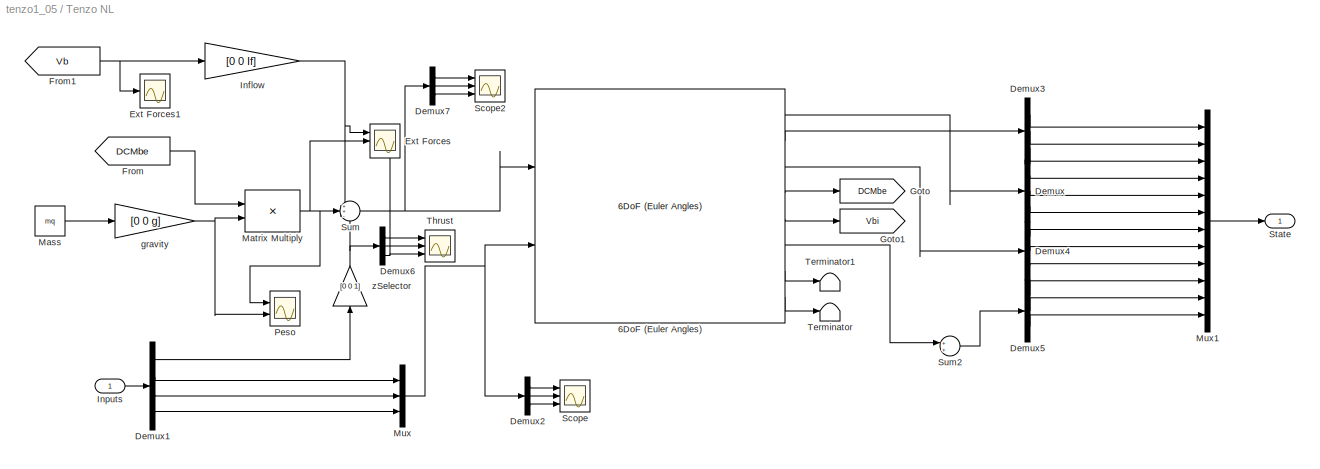
BLOCK [SubSystem] Tenzo NL
  FunctionWithSeparateData = off
  MaskHideContents = off
  MinAlgLoopOccurrences = off
  Opaque = off
  Ports = [1, 1]
  PropExecContextOutsideSubsystem = off
  RTWSystemCode = Auto
  RequestExecContextInheritance = off
  SID = 33
BLOCK [Reference] Tenzo NL/6DoF (Euler Angles)  REF=aerolib6dof2/6DoF (Euler Angles)
  Ports = [2, 8]
  SID = 3
  SourceBlock = aerolib6dof2/6DoF (Euler Angles)
  SourceType = 6DoF EoM (Body Axis)
  Vm_0 = [0 0 0]
  eul_0 = [0 0 0]
  inertia = II
  inertia_e = eye(3)
  inertia_f = 2*eye(3)
  k_quat = 1.0
  mass_0 = mq
  mass_e = 0.5
  mass_f = 2.0
  mtype = Fixed
  pm_0 = [0 0 0]
  rep = Euler Angles
  units = Metric (MKS)
  xme_0 = [0 0 0]
BLOCK [Demux] Tenzo NL/Demux
  DisplayOption = bar
  Outputs = 3
  Ports = [1, 3]
  SID = 8
BLOCK [Demux] Tenzo NL/Demux1
  DisplayOption = bar
  Ports = [1, 4]
  SID = 26
BLOCK [Demux] Tenzo NL/Demux2
  DisplayOption = bar
  Outputs = 3
  Ports = [1, 3]
  SID = 148
BLOCK [Demux] Tenzo NL/Demux3
  DisplayOption = bar
  Outputs = 3
  Ports = [1, 3]
  SID = 28
BLOCK [Demux] Tenzo NL/Demux4
  DisplayOption = bar
  Outputs = 3
  Ports = [1, 3]
  SID = 30
BLOCK [Demux] Tenzo NL/Demux5
  DisplayOption = bar
  Outputs = 3
  Ports = [1, 3]
  SID = 31
BLOCK [Demux] Tenzo NL/Demux6
  DisplayOption = bar
  Outputs = 3
  Ports = [1, 3]
  SID = 242
BLOCK [Demux] Tenzo NL/Demux7
  DisplayOption = bar
  Outputs = 3
  Ports = [1, 3]
  SID = 238
BLOCK [Scope] Tenzo NL/Ext Forces
  DataFormat = StructureWithTime
  Floating = off
  NumInputPorts = 3
  Ports = [3]
  SID = 149
  SampleInput = on
  SampleTime = 0.01
  SaveName = ScopeData5
  ShowLegends = off
  TimeRange = 30
  YMax = 0~2~5
  YMin = -950000~-8~-5
  ZoomMode = yonly
BLOCK [Scope] Tenzo NL/Ext Forces1
  DataFormat = StructureWithTime
  Floating = off
  NumInputPorts = 1
  Ports = [1]
  SID = 345
  SampleInput = on
  SampleTime = 0.01
  SaveName = ScopeData27
  ShowLegends = off
  TimeRange = 30
  YMax = 0
  YMin = -950000
  ZoomMode = yonly
BLOCK [From] Tenzo NL/From
  GotoTag = DCMbe
  SID = 19
BLOCK [From] Tenzo NL/From1
  GotoTag = Vb
  SID = 24
BLOCK [Goto] Tenzo NL/Goto
  GotoTag = DCMbe
  SID = 18
BLOCK [Goto] Tenzo NL/Goto1
  GotoTag = Vbi
  SID = 23
BLOCK [Gain] Tenzo NL/Inflow
  Gain = [0 0 If]
  OutDataTypeStr = Inherit: Inherit via internal rule
  ParamDataTypeStr = Inherit: Inherit via internal rule
  SID = 25
  SaturateOnIntegerOverflow = off
BLOCK [Inport] Tenzo NL/Inputs
  IconDisplay = Port number
  SID = 35
BLOCK [Constant] Tenzo NL/Mass
  SID = 6
  Value = mq
BLOCK [Product] Tenzo NL/Matrix Multiply
  InputSameDT = off
  Multiplication = Matrix(*)
  OutDataTypeStr = Inherit: Inherit via internal rule
  Ports = [2, 1]
  RndMeth = Floor
  SID = 21
  SaturateOnIntegerOverflow = off
BLOCK [Mux] Tenzo NL/Mux
  DisplayOption = bar
  Inputs = 3
  Ports = [3, 1]
  SID = 7
BLOCK [Mux] Tenzo NL/Mux1
  DisplayOption = bar
  Inputs = 12
  Ports = [12, 1]
  SID = 29
BLOCK [Scope] Tenzo NL/Peso
  DataFormat = StructureWithTime
  Floating = off
  NumInputPorts = 2
  Ports = [2]
  SID = 151
  SampleInput = on
  SampleTime = 0.01
  SaveName = ScopeData8
  ShowLegends = off
  TimeRange = 30
  YMax = 2~8.5
  YMin = -8~0
BLOCK [Scope] Tenzo NL/Scope
  DataFormat = StructureWithTime
  Floating = off
  NumInputPorts = 3
  Ports = [3]
  SID = 147
  SampleTime = 0
  SaveName = ScopeData4
  ShowLegends = off
  YMax = 28792.6~1~-607.435
  YMin = 26050.4~-1~-671.375
  ZoomMode = yonly
BLOCK [Scope] Tenzo NL/Scope2
  DataFormat = StructureWithTime
  Floating = off
  NumInputPorts = 3
  Ports = [3]
  SID = 240
  SampleTime = 0
  SaveName = ScopeData23
  ShowLegends = off
  YMax = 1~1~-0.4
  YMin = -1~-1~-2.3
  ZoomMode = yonly
BLOCK [Outport] Tenzo NL/State
  IconDisplay = Port number
  SID = 40
BLOCK [Sum] Tenzo NL/Sum
  IconShape = round
  InputSameDT = off
  Inputs = ++-
  OutDataTypeStr = Inherit: Inherit via internal rule
  Ports = [3, 1]
  SID = 5
  SaturateOnIntegerOverflow = off
BLOCK [Sum] Tenzo NL/Sum2
  IconShape = round
  InputSameDT = off
  OutDataTypeStr = Inherit: Inherit via internal rule
  Ports = [2, 1]
  SID = 652
  SaturateOnIntegerOverflow = off
BLOCK [Terminator] Tenzo NL/Terminator
  SID = 9
BLOCK [Terminator] Tenzo NL/Terminator1
  SID = 32
BLOCK [Scope] Tenzo NL/Thrust
  DataFormat = StructureWithTime
  Floating = off
  NumInputPorts = 3
  Ports = [3]
  SID = 243
  SampleTime = 0
  SaveName = ScopeData7
  ShowLegends = off
  YMax = 1~1~-0.4
  YMin = -1~-1~-2.3
  ZoomMode = yonly
BLOCK [Gain] Tenzo NL/gravity
  Gain = [0 0 g]
  OutDataTypeStr = Inherit: Inherit via internal rule
  ParamDataTypeStr = Inherit: Inherit via internal rule
  SID = 10
  SaturateOnIntegerOverflow = off
BLOCK [Gain] Tenzo NL/zSelector
  Gain = [0 0 1]
  OutDataTypeStr = Inherit: Inherit via internal rule
  ParamDataTypeStr = Inherit: Inherit via internal rule
  SID = 241
  SaturateOnIntegerOverflow = off
ANNOTATION PID /Pids: E_ze
ANNOTATION PID /Pids: e_phi
ANNOTATION PID /Pids: e_psi
ANNOTATION PID /Pids: e_theta
ANNOTATION Plots/Non Linear: -z
ANNOTATION Plots/Non Linear: x
ANNOTATION Plots/Non Linear: y
ANNOTATION Tenzo L/Kalman: 
LINE MS2:1 -> Tenzo NL:1
LINE Manual/                   :1 -> Manual/ws:1
LINE Manual/     :1 -> Manual/w0  :1
LINE Manual/ :1 -> Manual/Pwm:1
NET Manual/Add1:1 -> Manual/Demux5:1, Manual/Motori1:1
LINE Manual/Constant:1 -> Manual/Add1:1
LINE Manual/Demux5:1 -> Manual/ :1
LINE Manual/Demux5:2 -> Manual/ :2
LINE Manual/Demux5:3 -> Manual/ :3
LINE Manual/Demux5:4 -> Manual/ :4
LINE Manual/Demux6:1 -> Manual/                   :1
LINE Manual/Demux6:2 -> Manual/                   :2
LINE Manual/Demux6:3 -> Manual/                   :3
LINE Manual/Demux6:4 -> Manual/                   :4
LINE Manual/Demux8:1 -> Manual/Vector\nConcatenate2:1
LINE Manual/Demux8:2 -> Manual/Vector\nConcatenate2:2
LINE Manual/Demux8:3 -> Manual/Vector\nConcatenate2:3
LINE Manual/Demux8:4 -> Manual/Vector\nConcatenate2:4
LINE Manual/Demux9:1 -> Manual/     :1
LINE Manual/Demux9:2 -> Manual/     :2
LINE Manual/Demux9:3 -> Manual/     :3
LINE Manual/Demux9:4 -> Manual/     :4
LINE Manual/MS1:1 -> Manual/Torques\n&\nThrust:1
NET Manual/MS:1 -> Manual/Add1:2, Manual/Motori2:1, Manual/rad//s2:1
LINE Manual/Motori1/DeadZone1:1 -> Manual/Motori1/Motore 2:1
NET Manual/Motori1/DeadZone2:1 -> Manual/Motori1/Motore 3:1, Manual/Motori1/ws:1
LINE Manual/Motori1/DeadZone3:1 -> Manual/Motori1/Motore 4:1
LINE Manual/Motori1/DeadZone:1 -> Manual/Motori1/Motore 1:1
LINE Manual/Motori1/Demux5:1 -> Manual/Motori1/Sat:1
LINE Manual/Motori1/Demux5:2 -> Manual/Motori1/Sat3:1
LINE Manual/Motori1/Demux5:3 -> Manual/Motori1/Sat1:1
LINE Manual/Motori1/Demux5:4 -> Manual/Motori1/Sat2:1
LINE Manual/Motori1/Motore 1:1 -> Manual/Motori1/Mux:1
LINE Manual/Motori1/Motore 2:1 -> Manual/Motori1/Mux:3
LINE Manual/Motori1/Motore 3:1 -> Manual/Motori1/Mux:4
LINE Manual/Motori1/Motore 4:1 -> Manual/Motori1/Mux:2
LINE Manual/Motori1/Mux:1 -> Manual/Motori1/w:1
LINE Manual/Motori1/Pwm:1 -> Manual/Motori1/Demux5:1
LINE Manual/Motori1/Sat1:1 -> Manual/Motori1/DeadZone1:1
LINE Manual/Motori1/Sat2:1 -> Manual/Motori1/DeadZone2:1
LINE Manual/Motori1/Sat3:1 -> Manual/Motori1/DeadZone3:1
LINE Manual/Motori1/Sat:1 -> Manual/Motori1/DeadZone:1
NET Manual/Motori1:1 -> Manual/Demux6:1, Manual/MS1:1
LINE Manual/Motori2/DeadZone1:1 -> Manual/Motori2/Motore 2:1
LINE Manual/Motori2/DeadZone2:1 -> Manual/Motori2/Motore 3:1
LINE Manual/Motori2/DeadZone3:1 -> Manual/Motori2/Motore 4:1
LINE Manual/Motori2/DeadZone:1 -> Manual/Motori2/Motore 1:1
LINE Manual/Motori2/Demux5:1 -> Manual/Motori2/Sat:1
LINE Manual/Motori2/Demux5:2 -> Manual/Motori2/Sat3:1
LINE Manual/Motori2/Demux5:3 -> Manual/Motori2/Sat1:1
LINE Manual/Motori2/Demux5:4 -> Manual/Motori2/Sat2:1
LINE Manual/Motori2/Motore 1:1 -> Manual/Motori2/Mux:1
NET Manual/Motori2/Motore 2:1 -> Manual/Motori2/Mux:3, Manual/Motori2/ws:1
LINE Manual/Motori2/Motore 3:1 -> Manual/Motori2/Mux:4
LINE Manual/Motori2/Motore 4:1 -> Manual/Motori2/Mux:2
LINE Manual/Motori2/Mux:1 -> Manual/Motori2/w:1
LINE Manual/Motori2/Sat1:1 -> Manual/Motori2/DeadZone1:1
LINE Manual/Motori2/Sat2:1 -> Manual/Motori2/DeadZone2:1
LINE Manual/Motori2/Sat3:1 -> Manual/Motori2/DeadZone3:1
LINE Manual/Motori2/Sat:1 -> Manual/Motori2/DeadZone:1
LINE Manual/Motori2/wRif:1 -> Manual/Motori2/Demux5:1
NET Manual/Motori2:1 -> Manual/Demux9:1, Manual/MS1:2
LINE Manual/PulsInput/Add2:1 -> Manual/PulsInput/VC3:1
LINE Manual/PulsInput/Add3:1 -> Manual/PulsInput/VC3:3
LINE Manual/PulsInput/Add4:1 -> Manual/PulsInput/VC3:2
LINE Manual/PulsInput/Add5:1 -> Manual/PulsInput/VC3:4
LINE Manual/PulsInput/Constant1:1 -> Manual/PulsInput/Add2:1
LINE Manual/PulsInput/Constant2:1 -> Manual/PulsInput/Add3:1
LINE Manual/PulsInput/Constant3:1 -> Manual/PulsInput/Add4:1
LINE Manual/PulsInput/Constant4:1 -> Manual/PulsInput/Add5:1
LINE Manual/PulsInput/Inflow1:1 -> Manual/PulsInput/Add2:2
LINE Manual/PulsInput/Inflow2:1 -> Manual/PulsInput/Add4:2
LINE Manual/PulsInput/Inflow3:1 -> Manual/PulsInput/Add3:2
LINE Manual/PulsInput/Inflow4:1 -> Manual/PulsInput/Add5:2
LINE Manual/PulsInput/Pulse\nGenerator1:1 -> Manual/PulsInput/Inflow3:1
LINE Manual/PulsInput/Pulse\nGenerator2:1 -> Manual/PulsInput/Inflow2:1
LINE Manual/PulsInput/Pulse\nGenerator3:1 -> Manual/PulsInput/Inflow4:1
LINE Manual/PulsInput/Pulse\nGenerator:1 -> Manual/PulsInput/Inflow1:1
LINE Manual/PulsInput/VC3:1 -> Manual/PulsInput/W:1
LINE Manual/PulsInput:1 -> Manual/MS:1
LINE Manual/Ref0/Mux:1 -> Manual/Ref0/Out1:1
LINE Manual/Ref0/W1:1 -> Manual/Ref0/Mux:1
LINE Manual/Ref0/W2:1 -> Manual/Ref0/Mux:2
LINE Manual/Ref0/W3:1 -> Manual/Ref0/Mux:3
LINE Manual/Ref0/W4:1 -> Manual/Ref0/Mux:4
LINE Manual/Ref0:1 -> Manual/MS:2
LINE Manual/Torques\n&\nThrust/Add1:1 -> Manual/Torques\n&\nThrust/Gain:1
LINE Manual/Torques\n&\nThrust/Add2:1 -> Manual/Torques\n&\nThrust/Gain5:1
LINE Manual/Torques\n&\nThrust/Add3:1 -> Manual/Torques\n&\nThrust/Gain6:1
NET Manual/Torques\n&\nThrust/Add:1 -> Manual/Torques\n&\nThrust/F:1, Manual/Torques\n&\nThrust/Mux:1
NET Manual/Torques\n&\nThrust/Demux:1 -> Manual/Torques\n&\nThrust/F1:1, Manual/Torques\n&\nThrust/Math\nFunction1:1
LINE Manual/Torques\n&\nThrust/Demux:2 -> Manual/Torques\n&\nThrust/Math\nFunction2:1
LINE Manual/Torques\n&\nThrust/Demux:3 -> Manual/Torques\n&\nThrust/Math\nFunction3:1
LINE Manual/Torques\n&\nThrust/Demux:4 -> Manual/Torques\n&\nThrust/Math\nFunction4:1
NET Manual/Torques\n&\nThrust/Gain1:1 -> Manual/Torques\n&\nThrust/Add2:1, Manual/Torques\n&\nThrust/Add3:1, Manual/Torques\n&\nThrust/Add:1
NET Manual/Torques\n&\nThrust/Gain2:1 -> Manual/Torques\n&\nThrust/Add1:1, Manual/Torques\n&\nThrust/Add3:2, Manual/Torques\n&\nThrust/Add:2
NET Manual/Torques\n&\nThrust/Gain3:1 -> Manual/Torques\n&\nThrust/Add2:2, Manual/Torques\n&\nThrust/Add3:3, Manual/Torques\n&\nThrust/Add:3
NET Manual/Torques\n&\nThrust/Gain4:1 -> Manual/Torques\n&\nThrust/Add1:2, Manual/Torques\n&\nThrust/Add3:4, Manual/Torques\n&\nThrust/Add:4
NET Manual/Torques\n&\nThrust/Gain5:1 -> Manual/Torques\n&\nThrust/Mthe:1, Manual/Torques\n&\nThrust/Mux:3
NET Manual/Torques\n&\nThrust/Gain6:1 -> Manual/Torques\n&\nThrust/Mtau:1, Manual/Torques\n&\nThrust/Mux:4
NET Manual/Torques\n&\nThrust/Gain:1 -> Manual/Torques\n&\nThrust/Mpsi:1, Manual/Torques\n&\nThrust/Mux:2
NET Manual/Torques\n&\nThrust/Math\nFunction1:1 -> Manual/Torques\n&\nThrust/F1:2, Manual/Torques\n&\nThrust/Gain1:1
LINE Manual/Torques\n&\nThrust/Math\nFunction2:1 -> Manual/Torques\n&\nThrust/Gain2:1
LINE Manual/Torques\n&\nThrust/Math\nFunction3:1 -> Manual/Torques\n&\nThrust/Gain3:1
LINE Manual/Torques\n&\nThrust/Math\nFunction4:1 -> Manual/Torques\n&\nThrust/Gain4:1
LINE Manual/Torques\n&\nThrust/Mux:1 -> Manual/Torques\n&\nThrust/U(t):1
LINE Manual/Torques\n&\nThrust/w(t):1 -> Manual/Torques\n&\nThrust/Demux:1
NET Manual/Torques\n&\nThrust:1 -> Manual/Demux8:1, Manual/u_man(t):1
LINE Manual/Vector\nConcatenate2:1 -> Manual/rad//s:1
LINE Manual:1 -> MS2:1
LINE Motors dynamics/Demux11:1 -> Motors dynamics/T*toW:1
LINE Motors dynamics/Demux11:2 -> Motors dynamics/T*toW:2
LINE Motors dynamics/Demux11:3 -> Motors dynamics/T*toW:3
LINE Motors dynamics/Demux11:4 -> Motors dynamics/T*toW:4
LINE Motors dynamics/IdealForces:1 -> Motors dynamics/Demux11:1
LINE Motors dynamics/Motors/DZ1:1 -> Motors dynamics/Motors/Motore 4:1
LINE Motors dynamics/Motors/DZ2:1 -> Motors dynamics/Motors/Motore 2:1
LINE Motors dynamics/Motors/DZ3:1 -> Motors dynamics/Motors/Motore 3:1
LINE Motors dynamics/Motors/DZ:1 -> Motors dynamics/Motors/Motore 1:1
LINE Motors dynamics/Motors/Demux5:1 -> Motors dynamics/Motors/Sat:1
LINE Motors dynamics/Motors/Demux5:2 -> Motors dynamics/Motors/Sat3:1
LINE Motors dynamics/Motors/Demux5:3 -> Motors dynamics/Motors/Sat1:1
LINE Motors dynamics/Motors/Demux5:4 -> Motors dynamics/Motors/Sat2:1
NET Motors dynamics/Motors/Motore 1:1 -> Motors dynamics/Motors/Mux:1, Motors dynamics/Motors/ws:1
LINE Motors dynamics/Motors/Motore 2:1 -> Motors dynamics/Motors/Mux:3
LINE Motors dynamics/Motors/Motore 3:1 -> Motors dynamics/Motors/Mux:4
LINE Motors dynamics/Motors/Motore 4:1 -> Motors dynamics/Motors/Mux:2
LINE Motors dynamics/Motors/Mux:1 -> Motors dynamics/Motors/w:1
LINE Motors dynamics/Motors/Sat1:1 -> Motors dynamics/Motors/DZ2:1
LINE Motors dynamics/Motors/Sat2:1 -> Motors dynamics/Motors/DZ3:1
LINE Motors dynamics/Motors/Sat3:1 -> Motors dynamics/Motors/DZ1:1
LINE Motors dynamics/Motors/Sat:1 -> Motors dynamics/Motors/DZ:1
LINE Motors dynamics/Motors/wRif:1 -> Motors dynamics/Motors/Demux5:1
LINE Motors dynamics/Motors:1 -> Motors dynamics/WtoTreal:1
LINE Motors dynamics/Mux3:1 -> Motors dynamics/Motors:1
LINE Motors dynamics/T*toW/ Demux :1 -> Motors dynamics/T*toW/ Terminator :1
LINE Motors dynamics/T*toW/ SFunction :1 -> Motors dynamics/T*toW/ Demux :1
LINE Motors dynamics/T*toW/ SFunction :2 -> Motors dynamics/T*toW/w1:1
LINE Motors dynamics/T*toW/ SFunction :3 -> Motors dynamics/T*toW/w2:1
LINE Motors dynamics/T*toW/ SFunction :4 -> Motors dynamics/T*toW/w3:1
LINE Motors dynamics/T*toW/ SFunction :5 -> Motors dynamics/T*toW/w4:1
LINE Motors dynamics/T*toW/T:1 -> Motors dynamics/T*toW/ SFunction :1
LINE Motors dynamics/T*toW/taux:1 -> Motors dynamics/T*toW/ SFunction :2
LINE Motors dynamics/T*toW/tauy:1 -> Motors dynamics/T*toW/ SFunction :3
LINE Motors dynamics/T*toW/tauz:1 -> Motors dynamics/T*toW/ SFunction :4
LINE Motors dynamics/T*toW:1 -> Motors dynamics/Mux3:1
LINE Motors dynamics/T*toW:2 -> Motors dynamics/Mux3:2
LINE Motors dynamics/T*toW:3 -> Motors dynamics/Mux3:3
LINE Motors dynamics/T*toW:4 -> Motors dynamics/Mux3:4
LINE Motors dynamics/WtoTreal/Add1:1 -> Motors dynamics/WtoTreal/Gain:1
LINE Motors dynamics/WtoTreal/Add2:1 -> Motors dynamics/WtoTreal/Gain5:1
LINE Motors dynamics/WtoTreal/Add3:1 -> Motors dynamics/WtoTreal/Gain6:1
NET Motors dynamics/WtoTreal/Add:1 -> Motors dynamics/WtoTreal/F:1, Motors dynamics/WtoTreal/Mux:1
NET Motors dynamics/WtoTreal/Demux:1 -> Motors dynamics/WtoTreal/F1:1, Motors dynamics/WtoTreal/Math\nFunction1:1
LINE Motors dynamics/WtoTreal/Demux:2 -> Motors dynamics/WtoTreal/Math\nFunction2:1
LINE Motors dynamics/WtoTreal/Demux:3 -> Motors dynamics/WtoTreal/Math\nFunction3:1
LINE Motors dynamics/WtoTreal/Demux:4 -> Motors dynamics/WtoTreal/Math\nFunction4:1
NET Motors dynamics/WtoTreal/Gain1:1 -> Motors dynamics/WtoTreal/Add2:1, Motors dynamics/WtoTreal/Add3:1, Motors dynamics/WtoTreal/Add:1
NET Motors dynamics/WtoTreal/Gain2:1 -> Motors dynamics/WtoTreal/Add1:1, Motors dynamics/WtoTreal/Add3:2, Motors dynamics/WtoTreal/Add:2
NET Motors dynamics/WtoTreal/Gain3:1 -> Motors dynamics/WtoTreal/Add2:2, Motors dynamics/WtoTreal/Add3:3, Motors dynamics/WtoTreal/Add:3
NET Motors dynamics/WtoTreal/Gain4:1 -> Motors dynamics/WtoTreal/Add1:2, Motors dynamics/WtoTreal/Add3:4, Motors dynamics/WtoTreal/Add:4
NET Motors dynamics/WtoTreal/Gain5:1 -> Motors dynamics/WtoTreal/Mthe:1, Motors dynamics/WtoTreal/Mux:3
NET Motors dynamics/WtoTreal/Gain6:1 -> Motors dynamics/WtoTreal/Mtau:1, Motors dynamics/WtoTreal/Mux:4
NET Motors dynamics/WtoTreal/Gain:1 -> Motors dynamics/WtoTreal/Mpsi:1, Motors dynamics/WtoTreal/Mux:2
NET Motors dynamics/WtoTreal/Math\nFunction1:1 -> Motors dynamics/WtoTreal/F1:2, Motors dynamics/WtoTreal/Gain1:1
LINE Motors dynamics/WtoTreal/Math\nFunction2:1 -> Motors dynamics/WtoTreal/Gain2:1
LINE Motors dynamics/WtoTreal/Math\nFunction3:1 -> Motors dynamics/WtoTreal/Gain3:1
LINE Motors dynamics/WtoTreal/Math\nFunction4:1 -> Motors dynamics/WtoTreal/Gain4:1
LINE Motors dynamics/WtoTreal/Mux:1 -> Motors dynamics/WtoTreal/U(t):1
LINE Motors dynamics/WtoTreal/w(t):1 -> Motors dynamics/WtoTreal/Demux:1
LINE Motors dynamics/WtoTreal:1 -> Motors dynamics/RealForces:1
LINE Out_meas/C/ Demux :1 -> Out_meas/C/ Terminator :1
LINE Out_meas/C/ SFunction :1 -> Out_meas/C/ Demux :1
LINE Out_meas/C/ SFunction :2 -> Out_meas/C/ymis:1
LINE Out_meas/C/X:1 -> Out_meas/C/ SFunction :1
NET Out_meas/C:1 -> Out_meas/Ym(t) : output:1, Out_meas/Ymis:1
NET Out_meas/MS3:1 -> Out_meas/C:1, Out_meas/To Workspace:1
LINE Out_meas/yL:1 -> Out_meas/MS3:2
LINE Out_meas/yNL:1 -> Out_meas/MS3:1
LINE PID /Mux1:1 -> PID /Sum2:1
LINE PID /Pids/Constant1:1 -> PID /Pids/Sum1:1
LINE PID /Pids/Constant2:1 -> PID /Pids/Sum:1
LINE PID /Pids/Constant3:1 -> PID /Pids/Sum2:1
LINE PID /Pids/Constant4:1 -> PID /Pids/Sum3:1
LINE PID /Pids/From1:1 -> PID /Pids/Sum:2
LINE PID /Pids/From2:1 -> PID /Pids/Sum1:2
LINE PID /Pids/From3:1 -> PID /Pids/Sum2:2
LINE PID /Pids/From4:1 -> PID /Pids/Sum3:2
LINE PID /Pids/Mux1:1 -> PID /Pids/u*(t):1
LINE PID /Pids/PID Controller1:1 -> PID /Pids/Mux1:2
LINE PID /Pids/PID Controller2:1 -> PID /Pids/Mux1:3
LINE PID /Pids/PID Controller3:1 -> PID /Pids/Mux1:4
LINE PID /Pids/PID Controller:1 -> PID /Pids/Mux1:1
NET PID /Pids/Sum1:1 -> PID /Pids/PID Controller1:1, PID /Pids/w0  2:1
NET PID /Pids/Sum2:1 -> PID /Pids/PID Controller2:1, PID /Pids/w0  3:1
NET PID /Pids/Sum3:1 -> PID /Pids/PID Controller3:1, PID /Pids/w0  4:1
NET PID /Pids/Sum:1 -> PID /Pids/PID Controller:1, PID /Pids/w0  1:1
LINE PID /Pids:1 -> PID /Sum2:2
LINE PID /Signal Builder/Demux:1 -> PID /Signal Builder/Thrust:1
LINE PID /Signal Builder/Demux:2 -> PID /Signal Builder/TauPhi:1
LINE PID /Signal Builder/Demux:3 -> PID /Signal Builder/TauTheta:1
LINE PID /Signal Builder/Demux:4 -> PID /Signal Builder/TauPsi:1
LINE PID /Signal Builder/FromWs:1 -> PID /Signal Builder/Demux:1
LINE PID /Signal Builder:1 -> PID /Mux1:1
LINE PID /Signal Builder:2 -> PID /Mux1:2
LINE PID /Signal Builder:3 -> PID /Mux1:3
LINE PID /Signal Builder:4 -> PID /Mux1:4
NET PID /Sum2:1 -> PID /U(t):1, PID /w0  2:1
LINE PID :1 -> MS2:2
LINE Plots/Linear/Demux10:1 -> Plots/Linear/wx1:1
LINE Plots/Linear/Demux10:2 -> Plots/Linear/wx1:2
LINE Plots/Linear/Demux10:3 -> Plots/Linear/wx1:3
LINE Plots/Linear/Demux11:1 -> Plots/Linear/Mux4:3
LINE Plots/Linear/Demux11:2 -> Plots/Linear/Mux4:2
LINE Plots/Linear/Demux11:3 -> Plots/Linear/Mux4:1
NET Plots/Linear/Demux5:1 -> Plots/Linear/Mux1:1, Plots/Linear/xe1:1
NET Plots/Linear/Demux5:2 -> Plots/Linear/Mux1:3, Plots/Linear/xe1:2
NET Plots/Linear/Demux5:3 -> Plots/Linear/Inflow2:1, Plots/Linear/xe1:3
LINE Plots/Linear/Demux6:1 -> Plots/Linear/ve1:1
LINE Plots/Linear/Demux6:2 -> Plots/Linear/ve1:2
LINE Plots/Linear/Demux6:3 -> Plots/Linear/ve1:3
LINE Plots/Linear/Demux8:1 -> Plots/Linear/Demux5:1
LINE Plots/Linear/Demux8:2 -> Plots/Linear/Demux6:1
LINE Plots/Linear/Demux8:3 -> Plots/Linear/R2D2:1
LINE Plots/Linear/Demux8:4 -> Plots/Linear/R2D3:1
LINE Plots/Linear/Demux9:1 -> Plots/Linear/RollPitchYaw1:1
LINE Plots/Linear/Demux9:2 -> Plots/Linear/RollPitchYaw1:2
LINE Plots/Linear/Demux9:3 -> Plots/Linear/RollPitchYaw1:3
LINE Plots/Linear/Inflow2:1 -> Plots/Linear/Mux1:2
LINE Plots/Linear/Mux1:1 -> Plots/Linear/L trasl:1
LINE Plots/Linear/Mux4:1 -> Plots/Linear/Rotation Angles to\nDirection Cosine Matrix1:1
NET Plots/Linear/R2D2:1 -> Plots/Linear/Demux11:1, Plots/Linear/Demux9:1
LINE Plots/Linear/R2D3:1 -> Plots/Linear/Demux10:1
LINE Plots/Linear/Rotation Angles to\nDirection Cosine Matrix1:1 -> Plots/Linear/Rotation Matrix\nto VRML Rotation1:1
LINE Plots/Linear/Rotation Matrix\nto VRML Rotation1:1 -> Plots/Linear/L rot:1
LINE Plots/Linear/y_l:1 -> Plots/Linear/Demux8:1
LINE Plots/Linear:1 -> Plots/VR Sink:1
LINE Plots/Linear:2 -> Plots/VR Sink:2
LINE Plots/Non Linear/Demux1:1 -> Plots/Non Linear/ve:1
LINE Plots/Non Linear/Demux1:2 -> Plots/Non Linear/ve:2
LINE Plots/Non Linear/Demux1:3 -> Plots/Non Linear/ve:3
LINE Plots/Non Linear/Demux2:1 -> Plots/Non Linear/Demux:1
LINE Plots/Non Linear/Demux2:2 -> Plots/Non Linear/Demux1:1
LINE Plots/Non Linear/Demux2:3 -> Plots/Non Linear/R2D:1
LINE Plots/Non Linear/Demux2:4 -> Plots/Non Linear/R2D1:1
NET Plots/Non Linear/Demux3:1 -> Plots/Non Linear/Goto:1, Plots/Non Linear/RollPitchYaw:1
NET Plots/Non Linear/Demux3:2 -> Plots/Non Linear/Goto1:1, Plots/Non Linear/RollPitchYaw:2
NET Plots/Non Linear/Demux3:3 -> Plots/Non Linear/Goto2:1, Plots/Non Linear/RollPitchYaw:3
LINE Plots/Non Linear/Demux4:1 -> Plots/Non Linear/wx:1
LINE Plots/Non Linear/Demux4:2 -> Plots/Non Linear/wx:2
LINE Plots/Non Linear/Demux4:3 -> Plots/Non Linear/wx:3
LINE Plots/Non Linear/Demux7:1 -> Plots/Non Linear/Mux3:3
LINE Plots/Non Linear/Demux7:2 -> Plots/Non Linear/Mux3:2
LINE Plots/Non Linear/Demux7:3 -> Plots/Non Linear/Mux3:1
NET Plots/Non Linear/Demux:1 -> Plots/Non Linear/Mux2:1, Plots/Non Linear/xe:1
NET Plots/Non Linear/Demux:2 -> Plots/Non Linear/Mux2:3, Plots/Non Linear/xe:2
NET Plots/Non Linear/Demux:3 -> Plots/Non Linear/Goto3:1, Plots/Non Linear/Inflow1:1, Plots/Non Linear/xe:3
LINE Plots/Non Linear/Inflow1:1 -> Plots/Non Linear/Mux2:2
LINE Plots/Non Linear/Mux2:1 -> Plots/Non Linear/NL trasl:1
LINE Plots/Non Linear/Mux3:1 -> Plots/Non Linear/Rotation Angles to\nDirection Cosine Matrix:1
LINE Plots/Non Linear/R2D1:1 -> Plots/Non Linear/Demux4:1
NET Plots/Non Linear/R2D:1 -> Plots/Non Linear/Demux3:1, Plots/Non Linear/Demux7:1
LINE Plots/Non Linear/Rotation Angles to\nDirection Cosine Matrix:1 -> Plots/Non Linear/Rotation Matrix\nto VRML Rotation:1
LINE Plots/Non Linear/Rotation Matrix\nto VRML Rotation:1 -> Plots/Non Linear/NL rot:1
LINE Plots/Non Linear/y_nl:1 -> Plots/Non Linear/Demux2:1
LINE Plots/Non Linear:1 -> Plots/VR Sink:3
LINE Plots/Non Linear:2 -> Plots/VR Sink:4
LINE Plots/yL:1 -> Plots/Linear:1
LINE Plots/yNL:1 -> Plots/Non Linear:1
LINE Tenzo L/Constant3:1 -> Tenzo L/Sum:2
LINE Tenzo L/Demux10:1 -> Tenzo L/wx1:1
LINE Tenzo L/Demux10:2 -> Tenzo L/wx1:2
LINE Tenzo L/Demux10:3 -> Tenzo L/wx1:3
LINE Tenzo L/Demux12:1 -> Tenzo L/Vector\nConcatenate4:1
LINE Tenzo L/Demux12:2 -> Tenzo L/Vector\nConcatenate4:2
LINE Tenzo L/Demux12:3 -> Tenzo L/Vector\nConcatenate4:3
LINE Tenzo L/Demux12:4 -> Tenzo L/Vector\nConcatenate4:4
LINE Tenzo L/Demux2:1 -> Tenzo L/xe1:1
LINE Tenzo L/Demux2:2 -> Tenzo L/xe1:2
LINE Tenzo L/Demux2:3 -> Tenzo L/xe1:3
LINE Tenzo L/Demux3:1 -> Tenzo L/ve1:1
LINE Tenzo L/Demux3:2 -> Tenzo L/ve1:2
LINE Tenzo L/Demux3:3 -> Tenzo L/ve1:3
LINE Tenzo L/Demux4:1 -> Tenzo L/Demux2:1
LINE Tenzo L/Demux4:2 -> Tenzo L/Demux3:1
LINE Tenzo L/Demux4:3 -> Tenzo L/R2D2:1
LINE Tenzo L/Demux4:4 -> Tenzo L/R2D3:1
LINE Tenzo L/Demux7:1 -> Tenzo L/RollPitchYaw1:1
LINE Tenzo L/Demux7:2 -> Tenzo L/RollPitchYaw1:2
LINE Tenzo L/Demux7:3 -> Tenzo L/RollPitchYaw1:3
LINE Tenzo L/Kalman/Demux1:1 -> Tenzo L/Kalman/ve:1
LINE Tenzo L/Kalman/Demux1:2 -> Tenzo L/Kalman/ve:2
LINE Tenzo L/Kalman/Demux1:3 -> Tenzo L/Kalman/ve:3
LINE Tenzo L/Kalman/Demux2:1 -> Tenzo L/Kalman/Demux:1
LINE Tenzo L/Kalman/Demux2:2 -> Tenzo L/Kalman/Demux1:1
LINE Tenzo L/Kalman/Demux2:3 -> Tenzo L/Kalman/R2D:1
LINE Tenzo L/Kalman/Demux2:4 -> Tenzo L/Kalman/R2D1:1
LINE Tenzo L/Kalman/Demux3:1 -> Tenzo L/Kalman/RollPitchYaw:1
LINE Tenzo L/Kalman/Demux3:2 -> Tenzo L/Kalman/RollPitchYaw:2
LINE Tenzo L/Kalman/Demux3:3 -> Tenzo L/Kalman/RollPitchYaw:3
LINE Tenzo L/Kalman/Demux4:1 -> Tenzo L/Kalman/wx:1
LINE Tenzo L/Kalman/Demux4:2 -> Tenzo L/Kalman/wx:2
LINE Tenzo L/Kalman/Demux4:3 -> Tenzo L/Kalman/wx:3
LINE Tenzo L/Kalman/Demux:1 -> Tenzo L/Kalman/xe:1
LINE Tenzo L/Kalman/Demux:2 -> Tenzo L/Kalman/xe:2
LINE Tenzo L/Kalman/Demux:3 -> Tenzo L/Kalman/xe:3
LINE Tenzo L/Kalman/Kalman/Mux:1 -> Tenzo L/Kalman/Kalman/filtro di kalman:1
LINE Tenzo L/Kalman/Kalman/filtro di kalman:1 -> Tenzo L/Kalman/Kalman/xi0:1
LINE Tenzo L/Kalman/Kalman/u:1 -> Tenzo L/Kalman/Kalman/Mux:1
LINE Tenzo L/Kalman/Kalman/y:1 -> Tenzo L/Kalman/Kalman/Mux:2
NET Tenzo L/Kalman/Kalman:1 -> Tenzo L/Kalman/Sum:2, Tenzo L/Kalman/Xest:1
LINE Tenzo L/Kalman/R2D1:1 -> Tenzo L/Kalman/Demux4:1
LINE Tenzo L/Kalman/R2D:1 -> Tenzo L/Kalman/Demux3:1
LINE Tenzo L/Kalman/Sum:1 -> Tenzo L/Kalman/Demux2:1
LINE Tenzo L/Kalman/u:1 -> Tenzo L/Kalman/Kalman:1
NET Tenzo L/Kalman/y:1 -> Tenzo L/Kalman/Kalman:2, Tenzo L/Kalman/Sum:1
LINE Tenzo L/Kalman:1 -> Tenzo L/Sum:1
LINE Tenzo L/R2D2:1 -> Tenzo L/Demux7:1
LINE Tenzo L/R2D3:1 -> Tenzo L/Demux10:1
NET Tenzo L/Sum:1 -> Tenzo L/Demux4:1, Tenzo L/zSelector:1
NET Tenzo L/Tenzo L:1 -> Tenzo L/Kalman:1, Tenzo L/Out_L:1
LINE Tenzo L/Vector\nConcatenate4:1 -> Tenzo L/w0  3:1
NET Tenzo L/zSelector:1 -> Tenzo L/Demux12:1, Tenzo L/Kalman:2, Tenzo L/Tenzo L:1
NET Tenzo L:1 -> Out_meas:2, Plots:2
LINE Tenzo NL/6DoF (Euler Angles):1 -> Tenzo NL/Demux:1
LINE Tenzo NL/6DoF (Euler Angles):2 -> Tenzo NL/Demux3:1
LINE Tenzo NL/6DoF (Euler Angles):3 -> Tenzo NL/Demux4:1
LINE Tenzo NL/6DoF (Euler Angles):4 -> Tenzo NL/Goto:1
LINE Tenzo NL/6DoF (Euler Angles):5 -> Tenzo NL/Goto1:1
LINE Tenzo NL/6DoF (Euler Angles):6 -> Tenzo NL/Sum2:1
LINE Tenzo NL/6DoF (Euler Angles):7 -> Tenzo NL/Terminator1:1
LINE Tenzo NL/6DoF (Euler Angles):8 -> Tenzo NL/Terminator:1
LINE Tenzo NL/Demux1:1 -> Tenzo NL/zSelector:1
LINE Tenzo NL/Demux1:2 -> Tenzo NL/Mux:1
LINE Tenzo NL/Demux1:3 -> Tenzo NL/Mux:2
LINE Tenzo NL/Demux1:4 -> Tenzo NL/Mux:3
LINE Tenzo NL/Demux2:1 -> Tenzo NL/Scope:1
LINE Tenzo NL/Demux2:2 -> Tenzo NL/Scope:2
LINE Tenzo NL/Demux2:3 -> Tenzo NL/Scope:3
LINE Tenzo NL/Demux3:1 -> Tenzo NL/Mux1:1
LINE Tenzo NL/Demux3:2 -> Tenzo NL/Mux1:2
LINE Tenzo NL/Demux3:3 -> Tenzo NL/Mux1:3
LINE Tenzo NL/Demux4:1 -> Tenzo NL/Mux1:7
LINE Tenzo NL/Demux4:2 -> Tenzo NL/Mux1:8
LINE Tenzo NL/Demux4:3 -> Tenzo NL/Mux1:9
LINE Tenzo NL/Demux5:1 -> Tenzo NL/Mux1:10
LINE Tenzo NL/Demux5:2 -> Tenzo NL/Mux1:11
LINE Tenzo NL/Demux5:3 -> Tenzo NL/Mux1:12
LINE Tenzo NL/Demux6:1 -> Tenzo NL/Thrust:1
LINE Tenzo NL/Demux6:2 -> Tenzo NL/Thrust:2
NET Tenzo NL/Demux6:3 -> Tenzo NL/Ext Forces:3, Tenzo NL/Thrust:3
LINE Tenzo NL/Demux7:1 -> Tenzo NL/Scope2:1
LINE Tenzo NL/Demux7:2 -> Tenzo NL/Scope2:2
LINE Tenzo NL/Demux7:3 -> Tenzo NL/Scope2:3
LINE Tenzo NL/Demux:1 -> Tenzo NL/Mux1:4
LINE Tenzo NL/Demux:2 -> Tenzo NL/Mux1:5
LINE Tenzo NL/Demux:3 -> Tenzo NL/Mux1:6
NET Tenzo NL/From1:1 -> Tenzo NL/Ext Forces1:1, Tenzo NL/Inflow:1
LINE Tenzo NL/From:1 -> Tenzo NL/Matrix Multiply:1
NET Tenzo NL/Inflow:1 -> Tenzo NL/Ext Forces:1, Tenzo NL/Sum:1
LINE Tenzo NL/Inputs:1 -> Tenzo NL/Demux1:1
LINE Tenzo NL/Mass:1 -> Tenzo NL/gravity:1
NET Tenzo NL/Matrix Multiply:1 -> Tenzo NL/Ext Forces:2, Tenzo NL/Peso:1, Tenzo NL/Sum:2
LINE Tenzo NL/Mux1:1 -> Tenzo NL/State:1
NET Tenzo NL/Mux:1 -> Tenzo NL/6DoF (Euler Angles):2, Tenzo NL/Demux2:1
LINE Tenzo NL/Sum2:1 -> Tenzo NL/Demux5:1
NET Tenzo NL/Sum:1 -> Tenzo NL/6DoF (Euler Angles):1, Tenzo NL/Demux7:1
NET Tenzo NL/gravity:1 -> Tenzo NL/Matrix Multiply:2, Tenzo NL/Peso:2
NET Tenzo NL/zSelector:1 -> Tenzo NL/Demux6:1, Tenzo NL/Sum:3
NET Tenzo NL:1 -> Out_meas:1, Plots:1
note: NET lines group one-source signal fan-out (src -> all destinations, sorted); 1:1 wires keep LINE
CHART Motors dynamics/T*toW states=1 transitions=1
  STATE_LABEL 'eML_blk_kernel()'
CHART Out_meas/C states=1 transitions=1
  STATE_LABEL 'eML_blk_kernel()'
